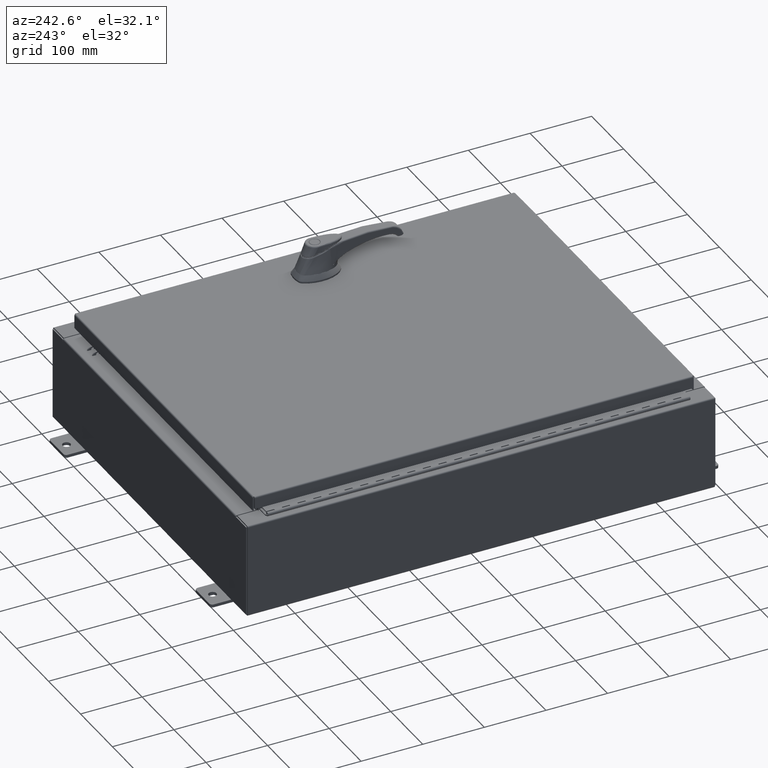
[diagram: clean part render]
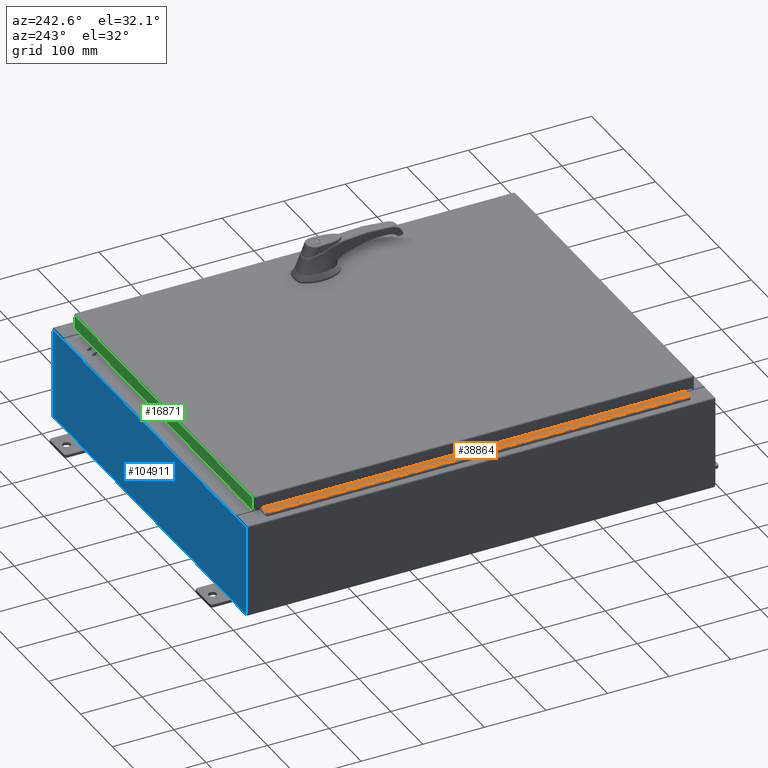
[diagram: same view with three faces highlighted in distinct colors, each labeled with its STEP entity id]
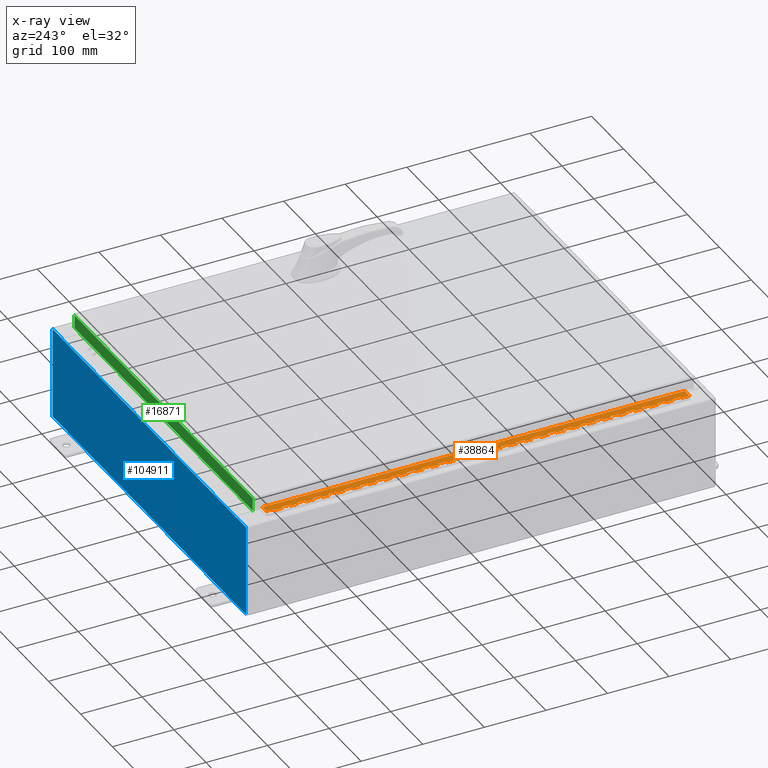
[diagram: x-ray of the same camera — body ghosted, the three highlighted faces saturated]
A machine part, auxiliary view with three faces highlighted in distinct colors.
The next image is the same camera in x-ray (body ghosted, the three faces saturated) — at least one of them is partly hidden behind the body in this view.
Their STEP definitions:

[orange] entity #38864 — the highlighted planar face has unit normal (-0, -0, 1).
#13 = VECTOR ( 'NONE', #10985, 39.37007874015748100 ) ;
#76 = DIRECTION ( 'NONE',  ( 3.389037039080723100E-015, 1.000000000000000000, -0.0000000000000000000 ) ) ;
#130 = DIRECTION ( 'NONE',  ( 0.0000000000000000000, 0.0000000000000000000, 1.000000000000000000 ) ) ;
#171 = CARTESIAN_POINT ( 'NONE',  ( -0.6869999999999978300, 0.6754999999999996600, -21.00000000000000000 ) ) ;
#343 = AXIS2_PLACEMENT_3D ( 'NONE', #84767, #93968, #39182 ) ;
#454 = ORIENTED_EDGE ( 'NONE', *, *, #86468, .F. ) ;
#469 = EDGE_CURVE ( 'NONE', #90402, #40831, #87715, .T. ) ;
#484 = VERTEX_POINT ( 'NONE', #25231 ) ;
#598 = CARTESIAN_POINT ( 'NONE',  ( -0.6869999999999982800, 0.5504999999999997700, -25.50000000000000400 ) ) ;
#778 = VERTEX_POINT ( 'NONE', #107673 ) ;
#816 = VECTOR ( 'NONE', #29030, 39.37007874015748100 ) ;
#1241 = VERTEX_POINT ( 'NONE', #5486 ) ;
#1539 = LINE ( 'NONE', #7505, #117460 ) ;
#1612 = LINE ( 'NONE', #116413, #47460 ) ;
#1690 = DIRECTION ( 'NONE',  ( 0.0000000000000000000, 0.0000000000000000000, 1.000000000000000000 ) ) ;
#2500 = EDGE_CURVE ( 'NONE', #55517, #10424, #88856, .T. ) ;
#2612 = DIRECTION ( 'NONE',  ( 0.0000000000000000000, -0.0000000000000000000, -1.000000000000000000 ) ) ;
#2765 = EDGE_CURVE ( 'NONE', #55517, #22323, #4372, .T. ) ;
#2823 = EDGE_CURVE ( 'NONE', #14271, #47510, #17159, .T. ) ;
#2902 = CARTESIAN_POINT ( 'NONE',  ( -0.6869999999999978300, 0.6754999999999996600, -27.00000000000000000 ) ) ;
#2935 = LINE ( 'NONE', #117263, #13 ) ;
#3002 = DIRECTION ( 'NONE',  ( 3.389037039080723100E-015, 1.000000000000000000, -0.0000000000000000000 ) ) ;
#3021 = CARTESIAN_POINT ( 'NONE',  ( -0.6869999999999982800, 0.5504999999999997700, -17.50000000000000000 ) ) ;
#3058 = VERTEX_POINT ( 'NONE', #4393 ) ;
#3226 = DIRECTION ( 'NONE',  ( 0.0000000000000000000, -0.0000000000000000000, -1.000000000000000000 ) ) ;
#3270 = VECTOR ( 'NONE', #66591, 39.37007874015748100 ) ;
#3296 = CARTESIAN_POINT ( 'NONE',  ( -0.6869999999999978300, 0.6754999999999996600, -2.999999999999999600 ) ) ;
#3429 = LINE ( 'NONE', #117751, #6308 ) ;
#3721 = VECTOR ( 'NONE', #7267, 39.37007874015748100 ) ;
#3754 = VERTEX_POINT ( 'NONE', #78424 ) ;
#3898 = VECTOR ( 'NONE', #38191, 39.37007874015748100 ) ;
#3915 = EDGE_CURVE ( 'NONE', #108784, #30503, #60109, .T. ) ;
#3977 = DIRECTION ( 'NONE',  ( 0.0000000000000000000, 0.0000000000000000000, 1.000000000000000000 ) ) ;
#4090 = ORIENTED_EDGE ( 'NONE', *, *, #90597, .T. ) ;
#4372 = LINE ( 'NONE', #26261, #22965 ) ;
#4393 = CARTESIAN_POINT ( 'NONE',  ( -0.6869999999999978300, 0.6754999999999996600, -4.000000000000000000 ) ) ;
#4608 = LINE ( 'NONE', #88050, #47538 ) ;
#4613 = CARTESIAN_POINT ( 'NONE',  ( -0.6869999999999982800, 0.5504999999999997700, -19.00000000000000000 ) ) ;
#4948 = EDGE_CURVE ( 'NONE', #69566, #22947, #8345, .T. ) ;
#5360 = VERTEX_POINT ( 'NONE', #91611 ) ;
#5467 = EDGE_CURVE ( 'NONE', #22947, #41766, #31208, .T. ) ;
#5486 = CARTESIAN_POINT ( 'NONE',  ( -0.6869999999999982800, 0.5504999999999997700, -10.50000000000000000 ) ) ;
#5724 = VECTOR ( 'NONE', #104943, 39.37007874015748100 ) ;
#6308 = VECTOR ( 'NONE', #53831, 39.37007874015748100 ) ;
#6373 = CARTESIAN_POINT ( 'NONE',  ( -0.6869999999999982800, 0.5504999999999997700, -4.500000000000000000 ) ) ;
#6503 = VECTOR ( 'NONE', #1690, 39.37007874015748100 ) ;
#6565 = EDGE_CURVE ( 'NONE', #67280, #38280, #25299, .T. ) ;
#6640 = ORIENTED_EDGE ( 'NONE', *, *, #85533, .F. ) ;
#6856 = FACE_OUTER_BOUND ( 'NONE', #55041, .T. ) ;
#7019 = EDGE_CURVE ( 'NONE', #116095, #110922, #51103, .T. ) ;
#7267 = DIRECTION ( 'NONE',  ( 0.0000000000000000000, 0.0000000000000000000, 1.000000000000000000 ) ) ;
#7505 = CARTESIAN_POINT ( 'NONE',  ( -0.6869999999999978300, 0.6754999999999996600, -27.00000000000000000 ) ) ;
#7653 = CARTESIAN_POINT ( 'NONE',  ( -0.6869999999999978300, 0.6754999999999996600, -27.00000000000000000 ) ) ;
#7980 = DIRECTION ( 'NONE',  ( 3.389037039080723100E-015, 1.000000000000000000, -0.0000000000000000000 ) ) ;
#7991 = VERTEX_POINT ( 'NONE', #26194 ) ;
#8060 = ORIENTED_EDGE ( 'NONE', *, *, #50328, .F. ) ;
#8078 = DIRECTION ( 'NONE',  ( 0.0000000000000000000, -0.0000000000000000000, -1.000000000000000000 ) ) ;
#8269 = ORIENTED_EDGE ( 'NONE', *, *, #77140, .F. ) ;
#8345 = LINE ( 'NONE', #94150, #57122 ) ;
#8399 = EDGE_CURVE ( 'NONE', #484, #3058, #19366, .T. ) ;
#8543 = LINE ( 'NONE', #83397, #101798 ) ;
#8574 = EDGE_CURVE ( 'NONE', #108617, #53066, #80890, .T. ) ;
#8817 = CARTESIAN_POINT ( 'NONE',  ( -0.6869999999999973900, 0.8004999999999995500, -6.000000000000000900 ) ) ;
#8901 = EDGE_CURVE ( 'NONE', #36688, #34665, #14987, .T. ) ;
#8918 = CARTESIAN_POINT ( 'NONE',  ( -0.6869999999999973900, 0.8004999999999995500, -14.49999999999999800 ) ) ;
#9740 = VERTEX_POINT ( 'NONE', #27729 ) ;
#9794 = VERTEX_POINT ( 'NONE', #69714 ) ;
#9839 = LINE ( 'NONE', #86927, #34192 ) ;
#9985 = ORIENTED_EDGE ( 'NONE', *, *, #18179, .F. ) ;
#10086 = DIRECTION ( 'NONE',  ( 0.0000000000000000000, 0.0000000000000000000, 1.000000000000000000 ) ) ;
#10149 = EDGE_CURVE ( 'NONE', #118443, #86940, #26486, .T. ) ;
#10329 = CARTESIAN_POINT ( 'NONE',  ( -0.6869999999999982800, 0.5504999999999997700, -7.499999999999999100 ) ) ;
#10345 = DIRECTION ( 'NONE',  ( 3.389037039080723100E-015, 1.000000000000000000, -0.0000000000000000000 ) ) ;
#10424 = VERTEX_POINT ( 'NONE', #33506 ) ;
#10608 = CARTESIAN_POINT ( 'NONE',  ( -0.6869999999999973900, 0.8004999999999995500, -22.50000000000000000 ) ) ;
#10734 = LINE ( 'NONE', #33080, #102326 ) ;
#10872 = DIRECTION ( 'NONE',  ( 3.389037039080723100E-015, 1.000000000000000000, -0.0000000000000000000 ) ) ;
#10985 = DIRECTION ( 'NONE',  ( 0.0000000000000000000, -0.0000000000000000000, -1.000000000000000000 ) ) ;
#11039 = CARTESIAN_POINT ( 'NONE',  ( -0.6869999999999973900, 0.8004999999999995500, -25.50000000000000400 ) ) ;
#11057 = CARTESIAN_POINT ( 'NONE',  ( -0.6869999999999973900, 0.8004999999999995500, -12.99999999999999800 ) ) ;
#11160 = ORIENTED_EDGE ( 'NONE', *, *, #61044, .T. ) ;
#11361 = VECTOR ( 'NONE', #58950, 39.37007874015748100 ) ;
#11402 = CARTESIAN_POINT ( 'NONE',  ( -0.6869999999999982800, 0.5504999999999997700, -0.5000000000000000000 ) ) ;
#11411 = EDGE_CURVE ( 'NONE', #116171, #37213, #49302, .T. ) ;
#11416 = EDGE_CURVE ( 'NONE', #34159, #778, #46393, .T. ) ;
#11464 = VECTOR ( 'NONE', #57694, 39.37007874015748100 ) ;
#11756 = ORIENTED_EDGE ( 'NONE', *, *, #67832, .F. ) ;
#11766 = CARTESIAN_POINT ( 'NONE',  ( -0.6869999999999978300, 0.6754999999999996600, -13.50000000000000000 ) ) ;
#11851 = CARTESIAN_POINT ( 'NONE',  ( -0.6869999999999973900, 0.8004999999999995500, -24.99999999999999600 ) ) ;
#11933 = EDGE_CURVE ( 'NONE', #81757, #1241, #97721, .T. ) ;
#12071 = LINE ( 'NONE', #25451, #109369 ) ;
#12408 = CARTESIAN_POINT ( 'NONE',  ( -0.6869999999999982800, 0.5504999999999997700, -26.50000000000000400 ) ) ;
#12575 = VECTOR ( 'NONE', #60781, 39.37007874015748100 ) ;
#12776 = ORIENTED_EDGE ( 'NONE', *, *, #28919, .F. ) ;
#12826 = VERTEX_POINT ( 'NONE', #171 ) ;
#13274 = DIRECTION ( 'NONE',  ( 0.0000000000000000000, 0.0000000000000000000, 1.000000000000000000 ) ) ;
#13971 = EDGE_CURVE ( 'NONE', #116860, #68855, #101777, .T. ) ;
#14271 = VERTEX_POINT ( 'NONE', #99706 ) ;
#14419 = CARTESIAN_POINT ( 'NONE',  ( -0.6869999999999982800, 0.5504999999999997700, -22.00000000000000000 ) ) ;
#14474 = LINE ( 'NONE', #34099, #103236 ) ;
#14584 = EDGE_CURVE ( 'NONE', #52878, #51158, #2935, .T. ) ;
#14620 = DIRECTION ( 'NONE',  ( 0.0000000000000000000, -0.0000000000000000000, -1.000000000000000000 ) ) ;
#14686 = CARTESIAN_POINT ( 'NONE',  ( -0.6869999999999978300, 0.6754999999999996600, -27.00000000000000000 ) ) ;
#14987 = LINE ( 'NONE', #49499, #109471 ) ;
#15061 = CARTESIAN_POINT ( 'NONE',  ( -0.6869999999999982800, 0.5504999999999997700, -15.50000000000000000 ) ) ;
#15353 = LINE ( 'NONE', #21801, #85563 ) ;
#15375 = EDGE_CURVE ( 'NONE', #27843, #62633, #8543, .T. ) ;
#15849 = VECTOR ( 'NONE', #76690, 39.37007874015748100 ) ;
#15862 = DIRECTION ( 'NONE',  ( 0.0000000000000000000, -0.0000000000000000000, -1.000000000000000000 ) ) ;
#15923 = ORIENTED_EDGE ( 'NONE', *, *, #30457, .F. ) ;
#16009 = DIRECTION ( 'NONE',  ( 0.0000000000000000000, 0.0000000000000000000, 1.000000000000000000 ) ) ;
#16261 = CARTESIAN_POINT ( 'NONE',  ( -0.6869999999999978300, 0.6754999999999996600, -5.500000000000000000 ) ) ;
#16410 = EDGE_CURVE ( 'NONE', #60188, #36936, #74485, .T. ) ;
#16503 = EDGE_CURVE ( 'NONE', #118006, #28363, #35816, .T. ) ;
#16546 = VECTOR ( 'NONE', #57124, 39.37007874015748100 ) ;
#16685 = VECTOR ( 'NONE', #46554, 39.37007874015748100 ) ;
#16686 = VECTOR ( 'NONE', #54353, 39.37007874015748100 ) ;
#16772 = CARTESIAN_POINT ( 'NONE',  ( -0.6869999999999973900, 0.8004999999999995500, -24.50000000000000000 ) ) ;
#16958 = CARTESIAN_POINT ( 'NONE',  ( -0.6869999999999973900, 0.8004999999999995500, -26.50000000000000400 ) ) ;
#16975 = CARTESIAN_POINT ( 'NONE',  ( -0.6869999999999973900, 0.8004999999999995500, -2.000000000000000000 ) ) ;
#17015 = VECTOR ( 'NONE', #89641, 39.37007874015748100 ) ;
#17130 = VECTOR ( 'NONE', #103929, 39.37007874015748100 ) ;
#17159 = LINE ( 'NONE', #11851, #68748 ) ;
#17191 = VERTEX_POINT ( 'NONE', #118518 ) ;
#17209 = DIRECTION ( 'NONE',  ( 0.0000000000000000000, 0.0000000000000000000, 1.000000000000000000 ) ) ;
#17342 = CARTESIAN_POINT ( 'NONE',  ( -0.6869999999999982800, 0.5504999999999997700, -1.499999999999999800 ) ) ;
#17453 = VECTOR ( 'NONE', #55324, 39.37007874015748100 ) ;
#17978 = DIRECTION ( 'NONE',  ( 3.389037039080723100E-015, 1.000000000000000000, -0.0000000000000000000 ) ) ;
#18174 = VERTEX_POINT ( 'NONE', #79090 ) ;
#18179 = EDGE_CURVE ( 'NONE', #102135, #20718, #89992, .T. ) ;
#18577 = DIRECTION ( 'NONE',  ( 0.0000000000000000000, 0.0000000000000000000, 1.000000000000000000 ) ) ;
#18618 = EDGE_CURVE ( 'NONE', #90429, #116095, #104193, .T. ) ;
#18778 = VERTEX_POINT ( 'NONE', #73913 ) ;
#19025 = ORIENTED_EDGE ( 'NONE', *, *, #13971, .F. ) ;
#19103 = VERTEX_POINT ( 'NONE', #17342 ) ;
#19213 = CARTESIAN_POINT ( 'NONE',  ( -0.6869999999999973900, 0.8004999999999995500, -4.500000000000000000 ) ) ;
#19218 = VERTEX_POINT ( 'NONE', #43263 ) ;
#19236 = LINE ( 'NONE', #14686, #43585 ) ;
#19366 = LINE ( 'NONE', #48852, #89547 ) ;
#19714 = CARTESIAN_POINT ( 'NONE',  ( -0.6870000000000022800, -0.6245000000000003900, 0.0000000000000000000 ) ) ;
#19920 = LINE ( 'NONE', #44018, #17015 ) ;
#20027 = CARTESIAN_POINT ( 'NONE',  ( -0.6869999999999973900, 0.8004999999999995500, -17.50000000000000000 ) ) ;
#20157 = EDGE_CURVE ( 'NONE', #5360, #19103, #39623, .T. ) ;
#20230 = CARTESIAN_POINT ( 'NONE',  ( -0.6869999999999978300, 0.6754999999999996600, -21.50000000000000400 ) ) ;
#20395 = CARTESIAN_POINT ( 'NONE',  ( -0.6869999999999982800, 0.5504999999999997700, -11.00000000000000000 ) ) ;
#20401 = DIRECTION ( 'NONE',  ( -3.389037039080723100E-015, -1.000000000000000000, 0.0000000000000000000 ) ) ;
#20575 = CARTESIAN_POINT ( 'NONE',  ( -0.6870000000000022800, -0.6245000000000003900, -27.00000000000000000 ) ) ;
#20718 = VERTEX_POINT ( 'NONE', #98260 ) ;
#20731 = PLANE ( 'NONE',  #343 ) ;
#20743 = ORIENTED_EDGE ( 'NONE', *, *, #8901, .F. ) ;
#20871 = VERTEX_POINT ( 'NONE', #49086 ) ;
#21200 = VECTOR ( 'NONE', #109171, 39.37007874015748100 ) ;
#21339 = CARTESIAN_POINT ( 'NONE',  ( -0.6869999999999978300, 0.6754999999999996600, -11.00000000000000000 ) ) ;
#21354 = EDGE_CURVE ( 'NONE', #47920, #93531, #95277, .T. ) ;
#21436 = VERTEX_POINT ( 'NONE', #36983 ) ;
#21800 = ORIENTED_EDGE ( 'NONE', *, *, #111608, .F. ) ;
#21801 = CARTESIAN_POINT ( 'NONE',  ( -0.6869999999999973900, 0.8004999999999995500, -1.000000000000000000 ) ) ;
#22008 = ORIENTED_EDGE ( 'NONE', *, *, #114912, .F. ) ;
#22118 = ORIENTED_EDGE ( 'NONE', *, *, #6565, .F. ) ;
#22260 = EDGE_CURVE ( 'NONE', #90429, #100064, #19236, .T. ) ;
#22305 = CARTESIAN_POINT ( 'NONE',  ( -0.6869999999999978300, 0.6754999999999996600, -27.00000000000000000 ) ) ;
#22323 = VERTEX_POINT ( 'NONE', #70314 ) ;
#22331 = LINE ( 'NONE', #11057, #816 ) ;
#22501 = CARTESIAN_POINT ( 'NONE',  ( -0.6869999999999978300, 0.6754999999999996600, -19.00000000000000000 ) ) ;
#22673 = VERTEX_POINT ( 'NONE', #57960 ) ;
#22802 = DIRECTION ( 'NONE',  ( 0.0000000000000000000, -0.0000000000000000000, -1.000000000000000000 ) ) ;
#22907 = DIRECTION ( 'NONE',  ( -3.389037039080723100E-015, -1.000000000000000000, 0.0000000000000000000 ) ) ;
#22946 = LINE ( 'NONE', #76332, #114478 ) ;
#22947 = VERTEX_POINT ( 'NONE', #43809 ) ;
#22965 = VECTOR ( 'NONE', #20401, 39.37007874015748100 ) ;
#23056 = EDGE_CURVE ( 'NONE', #26053, #32783, #3429, .T. ) ;
#23243 = CARTESIAN_POINT ( 'NONE',  ( -0.6869999999999982800, 0.5504999999999997700, -2.999999999999999600 ) ) ;
#23374 = ORIENTED_EDGE ( 'NONE', *, *, #84374, .F. ) ;
#23709 = VECTOR ( 'NONE', #39212, 39.37007874015748100 ) ;
#23858 = DIRECTION ( 'NONE',  ( 3.389037039080723100E-015, 1.000000000000000000, -0.0000000000000000000 ) ) ;
#23871 = VECTOR ( 'NONE', #28971, 39.37007874015748100 ) ;
#23896 = CARTESIAN_POINT ( 'NONE',  ( -0.6869999999999973900, 0.8004999999999995500, -19.50000000000000000 ) ) ;
#23901 = VERTEX_POINT ( 'NONE', #16261 ) ;
#23952 = ORIENTED_EDGE ( 'NONE', *, *, #15375, .T. ) ;
#24068 = LINE ( 'NONE', #54453, #21200 ) ;
#24092 = CARTESIAN_POINT ( 'NONE',  ( -0.6869999999999982800, 0.5504999999999997700, -16.50000000000000000 ) ) ;
#24143 = LINE ( 'NONE', #80098, #91468 ) ;
#24202 = EDGE_CURVE ( 'NONE', #80411, #10424, #22331, .T. ) ;
#24223 = VERTEX_POINT ( 'NONE', #93488 ) ;
#24541 = VERTEX_POINT ( 'NONE', #88623 ) ;
#24739 = EDGE_CURVE ( 'NONE', #81757, #82496, #30809, .T. ) ;
#24826 = ORIENTED_EDGE ( 'NONE', *, *, #70415, .F. ) ;
#25023 = ORIENTED_EDGE ( 'NONE', *, *, #44052, .T. ) ;
#25074 = CARTESIAN_POINT ( 'NONE',  ( -0.6869999999999982800, 0.5504999999999997700, -24.50000000000000000 ) ) ;
#25231 = CARTESIAN_POINT ( 'NONE',  ( -0.6869999999999982800, 0.5504999999999997700, -4.000000000000000000 ) ) ;
#25299 = LINE ( 'NONE', #72116, #114060 ) ;
#25451 = CARTESIAN_POINT ( 'NONE',  ( -0.6869999999999973900, 0.8004999999999995500, -9.000000000000000000 ) ) ;
#25602 = DIRECTION ( 'NONE',  ( -3.389037039080723100E-015, -1.000000000000000000, 0.0000000000000000000 ) ) ;
#25608 = VECTOR ( 'NONE', #10345, 39.37007874015748100 ) ;
#25658 = VERTEX_POINT ( 'NONE', #598 ) ;
#25766 = VECTOR ( 'NONE', #8078, 39.37007874015748100 ) ;
#25872 = LINE ( 'NONE', #25074, #96075 ) ;
#25897 = LINE ( 'NONE', #118604, #53164 ) ;
#25992 = DIRECTION ( 'NONE',  ( -3.389037039080723100E-015, -1.000000000000000000, 0.0000000000000000000 ) ) ;
#26053 = VERTEX_POINT ( 'NONE', #4613 ) ;
#26104 = CARTESIAN_POINT ( 'NONE',  ( -0.6869999999999982800, 0.5504999999999997700, -1.499999999999999800 ) ) ;
#26194 = CARTESIAN_POINT ( 'NONE',  ( -0.6869999999999982800, 0.5504999999999997700, -7.000000000000000000 ) ) ;
#26234 = CARTESIAN_POINT ( 'NONE',  ( -0.6869999999999982800, 0.5504999999999997700, -23.00000000000000000 ) ) ;
#26261 = CARTESIAN_POINT ( 'NONE',  ( -0.6869999999999973900, 0.8004999999999995500, -13.50000000000000000 ) ) ;
#26284 = CARTESIAN_POINT ( 'NONE',  ( -0.6869999999999982800, 0.5504999999999997700, -17.50000000000000000 ) ) ;
#26486 = LINE ( 'NONE', #20027, #48015 ) ;
#26847 = VECTOR ( 'NONE', #110619, 39.37007874015748100 ) ;
#26976 = DIRECTION ( 'NONE',  ( 3.389037039080723100E-015, 1.000000000000000000, -0.0000000000000000000 ) ) ;
#27221 = DIRECTION ( 'NONE',  ( 0.0000000000000000000, -0.0000000000000000000, -1.000000000000000000 ) ) ;
#27460 = CARTESIAN_POINT ( 'NONE',  ( -0.6869999999999978300, 0.6754999999999996600, -27.00000000000000000 ) ) ;
#27634 = CARTESIAN_POINT ( 'NONE',  ( -0.6869999999999978300, 0.6754999999999996600, -27.00000000000000000 ) ) ;
#27729 = CARTESIAN_POINT ( 'NONE',  ( -0.6869999999999982800, 0.5504999999999997700, -0.5000000000000000000 ) ) ;
#27843 = VERTEX_POINT ( 'NONE', #106285 ) ;
#27908 = VECTOR ( 'NONE', #100675, 39.37007874015748100 ) ;
#27917 = ORIENTED_EDGE ( 'NONE', *, *, #37187, .F. ) ;
#27990 = DIRECTION ( 'NONE',  ( 3.389037039080723100E-015, 1.000000000000000000, -0.0000000000000000000 ) ) ;
#28064 = ORIENTED_EDGE ( 'NONE', *, *, #52074, .F. ) ;
#28115 = CARTESIAN_POINT ( 'NONE',  ( -0.6869999999999982800, 0.5504999999999997700, -5.500000000000000000 ) ) ;
#28245 = EDGE_CURVE ( 'NONE', #30503, #102444, #57662, .T. ) ;
#28363 = VERTEX_POINT ( 'NONE', #37337 ) ;
#28721 = CARTESIAN_POINT ( 'NONE',  ( -0.6869999999999973900, 0.8004999999999995500, -10.00000000000000000 ) ) ;
#28919 = EDGE_CURVE ( 'NONE', #94154, #67068, #81798, .T. ) ;
#28971 = DIRECTION ( 'NONE',  ( 0.0000000000000000000, -0.0000000000000000000, -1.000000000000000000 ) ) ;
#29030 = DIRECTION ( 'NONE',  ( 3.389037039080723100E-015, 1.000000000000000000, -0.0000000000000000000 ) ) ;
#29083 = VECTOR ( 'NONE', #71243, 39.37007874015748100 ) ;
#29183 = ORIENTED_EDGE ( 'NONE', *, *, #18618, .F. ) ;
#29298 = VECTOR ( 'NONE', #116558, 39.37007874015748100 ) ;
#29301 = EDGE_CURVE ( 'NONE', #20871, #24223, #40294, .T. ) ;
#29628 = LINE ( 'NONE', #53239, #72586 ) ;
#29686 = CARTESIAN_POINT ( 'NONE',  ( -0.6869999999999978300, 0.6754999999999996600, -8.000000000000000000 ) ) ;
#30059 = ORIENTED_EDGE ( 'NONE', *, *, #75154, .F. ) ;
#30185 = EDGE_CURVE ( 'NONE', #117831, #64828, #83067, .T. ) ;
#30457 = EDGE_CURVE ( 'NONE', #116171, #99485, #22946, .T. ) ;
#30495 = EDGE_CURVE ( 'NONE', #19218, #73907, #90207, .T. ) ;
#30503 = VERTEX_POINT ( 'NONE', #40374 ) ;
#30549 = ORIENTED_EDGE ( 'NONE', *, *, #96558, .T. ) ;
#30720 = DIRECTION ( 'NONE',  ( -3.389037039080723100E-015, -1.000000000000000000, 0.0000000000000000000 ) ) ;
#30809 = LINE ( 'NONE', #92962, #6503 ) ;
#30881 = CARTESIAN_POINT ( 'NONE',  ( -0.6869999999999982800, 0.5504999999999997700, -22.50000000000000000 ) ) ;
#31137 = VECTOR ( 'NONE', #14620, 39.37007874015748100 ) ;
#31198 = VECTOR ( 'NONE', #107918, 39.37007874015748100 ) ;
#31208 = LINE ( 'NONE', #53068, #79862 ) ;
#31225 = EDGE_CURVE ( 'NONE', #107612, #7991, #19920, .T. ) ;
#31426 = VECTOR ( 'NONE', #56284, 39.37007874015748100 ) ;
#31648 = VECTOR ( 'NONE', #31778, 39.37007874015748100 ) ;
#31778 = DIRECTION ( 'NONE',  ( -3.389037039080723100E-015, -1.000000000000000000, 0.0000000000000000000 ) ) ;
#32013 = ORIENTED_EDGE ( 'NONE', *, *, #76402, .F. ) ;
#32183 = VECTOR ( 'NONE', #22802, 39.37007874015748100 ) ;
#32507 = LINE ( 'NONE', #64170, #78272 ) ;
#32538 = VERTEX_POINT ( 'NONE', #28115 ) ;
#32559 = VERTEX_POINT ( 'NONE', #101758 ) ;
#32783 = VERTEX_POINT ( 'NONE', #22501 ) ;
#32800 = LINE ( 'NONE', #101465, #54278 ) ;
#32829 = ORIENTED_EDGE ( 'NONE', *, *, #7019, .F. ) ;
#32924 = VECTOR ( 'NONE', #17209, 39.37007874015748100 ) ;
#32982 = VERTEX_POINT ( 'NONE', #66874 ) ;
#33080 = CARTESIAN_POINT ( 'NONE',  ( -0.6869999999999973900, 0.8004999999999995500, -5.000000000000000000 ) ) ;
#33131 = DIRECTION ( 'NONE',  ( 0.0000000000000000000, 0.0000000000000000000, 1.000000000000000000 ) ) ;
#33176 = CARTESIAN_POINT ( 'NONE',  ( -0.6869999999999982800, 0.5504999999999997700, -6.499999999999999100 ) ) ;
#33254 = ORIENTED_EDGE ( 'NONE', *, *, #78851, .T. ) ;
#33506 = CARTESIAN_POINT ( 'NONE',  ( -0.6869999999999978300, 0.6754999999999996600, -12.99999999999999800 ) ) ;
#33985 = LINE ( 'NONE', #57904, #36870 ) ;
#34099 = CARTESIAN_POINT ( 'NONE',  ( -0.6869999999999978300, 0.6754999999999996600, -27.00000000000000000 ) ) ;
#34159 = VERTEX_POINT ( 'NONE', #41300 ) ;
#34192 = VECTOR ( 'NONE', #22907, 39.37007874015748100 ) ;
#34323 = VERTEX_POINT ( 'NONE', #98026 ) ;
#34532 = EDGE_CURVE ( 'NONE', #91463, #32559, #38357, .T. ) ;
#34626 = VECTOR ( 'NONE', #51947, 39.37007874015748100 ) ;
#34665 = VERTEX_POINT ( 'NONE', #26234 ) ;
#34849 = CARTESIAN_POINT ( 'NONE',  ( -0.6869999999999978300, 0.6754999999999996600, -27.00000000000000000 ) ) ;
#35034 = LINE ( 'NONE', #96024, #32183 ) ;
#35146 = EDGE_CURVE ( 'NONE', #106253, #73907, #98343, .T. ) ;
#35202 = CARTESIAN_POINT ( 'NONE',  ( -0.6869999999999973900, 0.8004999999999995500, -20.50000000000000400 ) ) ;
#35595 = CARTESIAN_POINT ( 'NONE',  ( -0.6869999999999973900, 0.8004999999999995500, -17.00000000000000000 ) ) ;
#35816 = LINE ( 'NONE', #84425, #11464 ) ;
#35958 = CARTESIAN_POINT ( 'NONE',  ( -0.6869999999999973900, 0.8004999999999995500, -2.500000000000000000 ) ) ;
#36024 = CARTESIAN_POINT ( 'NONE',  ( -0.6869999999999998300, 0.07549999999999991400, 0.0000000000000000000 ) ) ;
#36561 = EDGE_CURVE ( 'NONE', #73906, #12826, #87335, .T. ) ;
#36573 = VERTEX_POINT ( 'NONE', #29686 ) ;
#36591 = ORIENTED_EDGE ( 'NONE', *, *, #14584, .F. ) ;
#36688 = VERTEX_POINT ( 'NONE', #30881 ) ;
#36723 = DIRECTION ( 'NONE',  ( 0.0000000000000000000, 0.0000000000000000000, 1.000000000000000000 ) ) ;
#36747 = VECTOR ( 'NONE', #60524, 39.37007874015748100 ) ;
#36859 = CARTESIAN_POINT ( 'NONE',  ( -0.6869999999999973900, 0.8004999999999995500, -23.50000000000000000 ) ) ;
#36870 = VECTOR ( 'NONE', #2612, 39.37007874015748100 ) ;
#36936 = VERTEX_POINT ( 'NONE', #80760 ) ;
#36983 = CARTESIAN_POINT ( 'NONE',  ( -0.6869999999999978300, 0.6754999999999996600, -6.000000000000000900 ) ) ;
#37187 = EDGE_CURVE ( 'NONE', #95690, #82496, #98640, .T. ) ;
#37213 = VERTEX_POINT ( 'NONE', #74763 ) ;
#37324 = ORIENTED_EDGE ( 'NONE', *, *, #41044, .F. ) ;
#37337 = CARTESIAN_POINT ( 'NONE',  ( -0.6869999999999982800, 0.5504999999999997700, -8.500000000000000000 ) ) ;
#37771 = EDGE_CURVE ( 'NONE', #22323, #90402, #24143, .T. ) ;
#38157 = LINE ( 'NONE', #82089, #81024 ) ;
#38191 = DIRECTION ( 'NONE',  ( 3.389037039080723100E-015, 1.000000000000000000, -0.0000000000000000000 ) ) ;
#38200 = ORIENTED_EDGE ( 'NONE', *, *, #10149, .F. ) ;
#38280 = VERTEX_POINT ( 'NONE', #69227 ) ;
#38357 = LINE ( 'NONE', #39199, #59874 ) ;
#38864 = ADVANCED_FACE ( 'NONE', ( #6856 ), #20731, .T. ) ;
#39061 = VERTEX_POINT ( 'NONE', #49976 ) ;
#39182 = DIRECTION ( 'NONE',  ( 3.369016658928398200E-015, 1.000000000000000000, 0.0000000000000000000 ) ) ;
#39199 = CARTESIAN_POINT ( 'NONE',  ( -0.6869999999999978300, 0.6754999999999996600, -27.00000000000000000 ) ) ;
#39212 = DIRECTION ( 'NONE',  ( 0.0000000000000000000, -0.0000000000000000000, -1.000000000000000000 ) ) ;
#39623 = LINE ( 'NONE', #106057, #36747 ) ;
#39732 = ORIENTED_EDGE ( 'NONE', *, *, #36561, .F. ) ;
#40044 = CARTESIAN_POINT ( 'NONE',  ( -0.6869999999999978300, 0.6754999999999996600, -2.000000000000000000 ) ) ;
#40143 = CARTESIAN_POINT ( 'NONE',  ( -0.6869999999999982800, 0.5504999999999997700, -15.50000000000000000 ) ) ;
#40294 = LINE ( 'NONE', #22305, #15849 ) ;
#40311 = ORIENTED_EDGE ( 'NONE', *, *, #11411, .T. ) ;
#40316 = VERTEX_POINT ( 'NONE', #42418 ) ;
#40374 = CARTESIAN_POINT ( 'NONE',  ( -0.6869999999999982800, 0.5504999999999997700, -11.50000000000000000 ) ) ;
#40593 = CARTESIAN_POINT ( 'NONE',  ( -0.6869999999999982800, 0.5504999999999997700, -11.50000000000000000 ) ) ;
#40831 = VERTEX_POINT ( 'NONE', #43438 ) ;
#40967 = CARTESIAN_POINT ( 'NONE',  ( -0.6869999999999973900, 0.8004999999999995500, -23.00000000000000000 ) ) ;
#41044 = EDGE_CURVE ( 'NONE', #95266, #25658, #89614, .T. ) ;
#41169 = ORIENTED_EDGE ( 'NONE', *, *, #2500, .T. ) ;
#41173 = CARTESIAN_POINT ( 'NONE',  ( -0.6869999999999978300, 0.6754999999999996600, -6.499999999999999100 ) ) ;
#41180 = EDGE_CURVE ( 'NONE', #86940, #106253, #108188, .T. ) ;
#41300 = CARTESIAN_POINT ( 'NONE',  ( -0.6869999999999978300, 0.6754999999999996600, -14.49999999999999800 ) ) ;
#41664 = CARTESIAN_POINT ( 'NONE',  ( -0.6869999999999978300, 0.6754999999999996600, -26.00000000000000000 ) ) ;
#41718 = CARTESIAN_POINT ( 'NONE',  ( -0.6869999999999978300, 0.6754999999999996600, -26.50000000000000400 ) ) ;
#41766 = VERTEX_POINT ( 'NONE', #14419 ) ;
#42368 = VECTOR ( 'NONE', #115503, 39.37007874015748100 ) ;
#42418 = CARTESIAN_POINT ( 'NONE',  ( -0.6869999999999982800, 0.5504999999999997700, -27.00000000000000000 ) ) ;
#42546 = LINE ( 'NONE', #76194, #85499 ) ;
#42579 = CARTESIAN_POINT ( 'NONE',  ( -0.6869999999999978300, 0.6754999999999996600, -25.50000000000000400 ) ) ;
#42830 = ORIENTED_EDGE ( 'NONE', *, *, #90133, .F. ) ;
#42845 = CARTESIAN_POINT ( 'NONE',  ( -0.6869999999999982800, 0.5504999999999997700, -20.00000000000000000 ) ) ;
#42890 = LINE ( 'NONE', #2902, #88724 ) ;
#43154 = LINE ( 'NONE', #97484, #88968 ) ;
#43156 = VECTOR ( 'NONE', #53593, 39.37007874015748100 ) ;
#43263 = CARTESIAN_POINT ( 'NONE',  ( -0.6869999999999978300, 0.6754999999999996600, -18.50000000000000000 ) ) ;
#43289 = ORIENTED_EDGE ( 'NONE', *, *, #105312, .T. ) ;
#43420 = CARTESIAN_POINT ( 'NONE',  ( -0.6869999999999978300, 0.6754999999999996600, -27.00000000000000000 ) ) ;
#43438 = CARTESIAN_POINT ( 'NONE',  ( -0.6869999999999978300, 0.6754999999999996600, -14.00000000000000000 ) ) ;
#43508 = VECTOR ( 'NONE', #61952, 39.37007874015748100 ) ;
#43585 = VECTOR ( 'NONE', #78724, 39.37007874015748100 ) ;
#43809 = CARTESIAN_POINT ( 'NONE',  ( -0.6869999999999982800, 0.5504999999999997700, -21.50000000000000400 ) ) ;
#43896 = CARTESIAN_POINT ( 'NONE',  ( -0.6869999999999978300, 0.6754999999999996600, -27.00000000000000000 ) ) ;
#43924 = CARTESIAN_POINT ( 'NONE',  ( -0.6869999999999978300, 0.6754999999999996600, -22.00000000000000000 ) ) ;
#43930 = LINE ( 'NONE', #19714, #16685 ) ;
#44018 = CARTESIAN_POINT ( 'NONE',  ( -0.6869999999999982800, 0.5504999999999997700, -6.499999999999999100 ) ) ;
#44052 = EDGE_CURVE ( 'NONE', #108784, #64828, #77768, .T. ) ;
#44207 = ORIENTED_EDGE ( 'NONE', *, *, #47852, .T. ) ;
#44655 = CARTESIAN_POINT ( 'NONE',  ( -0.6869999999999973900, 0.8004999999999995500, -18.50000000000000000 ) ) ;
#45095 = ORIENTED_EDGE ( 'NONE', *, *, #64150, .F. ) ;
#45353 = CARTESIAN_POINT ( 'NONE',  ( -0.6869999999999978300, 0.6754999999999996600, -7.000000000000000000 ) ) ;
#45536 = VERTEX_POINT ( 'NONE', #59804 ) ;
#45646 = CARTESIAN_POINT ( 'NONE',  ( -0.6869999999999978300, 0.6754999999999996600, -20.50000000000000400 ) ) ;
#45695 = DIRECTION ( 'NONE',  ( 3.389037039080723100E-015, 1.000000000000000000, -0.0000000000000000000 ) ) ;
#45710 = VECTOR ( 'NONE', #93822, 39.37007874015748100 ) ;
#45889 = CARTESIAN_POINT ( 'NONE',  ( -0.6869999999999982800, 0.5504999999999997700, -3.500000000000000000 ) ) ;
#45911 = CARTESIAN_POINT ( 'NONE',  ( -0.6869999999999973900, 0.8004999999999995500, -7.499999999999999100 ) ) ;
#46070 = VECTOR ( 'NONE', #53887, 39.37007874015748100 ) ;
#46137 = CARTESIAN_POINT ( 'NONE',  ( -0.6869999999999982800, 0.5504999999999997700, -2.500000000000000000 ) ) ;
#46140 = LINE ( 'NONE', #79881, #70459 ) ;
#46282 = DIRECTION ( 'NONE',  ( 0.0000000000000000000, 0.0000000000000000000, 1.000000000000000000 ) ) ;
#46351 = DIRECTION ( 'NONE',  ( 0.0000000000000000000, 0.0000000000000000000, 1.000000000000000000 ) ) ;
#46393 = LINE ( 'NONE', #8918, #43508 ) ;
#46554 = DIRECTION ( 'NONE',  ( 3.369016658928398200E-015, 1.000000000000000000, 0.0000000000000000000 ) ) ;
#46598 = LINE ( 'NONE', #27460, #68038 ) ;
#46603 = VECTOR ( 'NONE', #90200, 39.37007874015748100 ) ;
#46811 = EDGE_CURVE ( 'NONE', #90121, #26053, #46140, .T. ) ;
#46931 = LINE ( 'NONE', #51396, #68388 ) ;
#47297 = DIRECTION ( 'NONE',  ( -3.389037039080723100E-015, -1.000000000000000000, 0.0000000000000000000 ) ) ;
#47308 = VERTEX_POINT ( 'NONE', #69611 ) ;
#47329 = EDGE_CURVE ( 'NONE', #18778, #32982, #4608, .T. ) ;
#47395 = ORIENTED_EDGE ( 'NONE', *, *, #21354, .T. ) ;
#47460 = VECTOR ( 'NONE', #107277, 39.37007874015748100 ) ;
#47510 = VERTEX_POINT ( 'NONE', #75526 ) ;
#47538 = VECTOR ( 'NONE', #58945, 39.37007874015748100 ) ;
#47740 = DIRECTION ( 'NONE',  ( 3.389037039080723100E-015, 1.000000000000000000, -0.0000000000000000000 ) ) ;
#47852 = EDGE_CURVE ( 'NONE', #18778, #67200, #43154, .T. ) ;
#47920 = VERTEX_POINT ( 'NONE', #70648 ) ;
#48009 = CARTESIAN_POINT ( 'NONE',  ( -0.6869999999999978300, 0.6754999999999996600, -27.00000000000000000 ) ) ;
#48015 = VECTOR ( 'NONE', #80469, 39.37007874015748100 ) ;
#48016 = ORIENTED_EDGE ( 'NONE', *, *, #74401, .F. ) ;
#48100 = EDGE_CURVE ( 'NONE', #23901, #32538, #25897, .T. ) ;
#48265 = CARTESIAN_POINT ( 'NONE',  ( -0.6869999999999978300, 0.6754999999999996600, -15.50000000000000000 ) ) ;
#48316 = CARTESIAN_POINT ( 'NONE',  ( -0.6869999999999982800, 0.5504999999999997700, -10.00000000000000000 ) ) ;
#48401 = EDGE_CURVE ( 'NONE', #9740, #3754, #70034, .T. ) ;
#48563 = LINE ( 'NONE', #111246, #94338 ) ;
#48766 = CARTESIAN_POINT ( 'NONE',  ( -0.6869999999999978300, 0.6754999999999996600, -0.5000000000000000000 ) ) ;
#48803 = ORIENTED_EDGE ( 'NONE', *, *, #107580, .F. ) ;
#48852 = CARTESIAN_POINT ( 'NONE',  ( -0.6869999999999973900, 0.8004999999999995500, -4.000000000000000000 ) ) ;
#49086 = CARTESIAN_POINT ( 'NONE',  ( -0.6869999999999978300, 0.6754999999999996600, -24.50000000000000000 ) ) ;
#49302 = LINE ( 'NONE', #43896, #116443 ) ;
#49489 = ORIENTED_EDGE ( 'NONE', *, *, #41180, .F. ) ;
#49499 = CARTESIAN_POINT ( 'NONE',  ( -0.6869999999999982800, 0.5504999999999997700, -22.50000000000000000 ) ) ;
#49577 = ORIENTED_EDGE ( 'NONE', *, *, #62124, .F. ) ;
#49806 = ORIENTED_EDGE ( 'NONE', *, *, #63473, .F. ) ;
#49916 = ORIENTED_EDGE ( 'NONE', *, *, #2823, .F. ) ;
#49976 = CARTESIAN_POINT ( 'NONE',  ( -0.6869999999999982800, 0.5504999999999997700, -24.50000000000000000 ) ) ;
#50328 = EDGE_CURVE ( 'NONE', #102444, #109069, #75544, .T. ) ;
#50533 = EDGE_CURVE ( 'NONE', #3754, #105871, #15353, .T. ) ;
#51103 = LINE ( 'NONE', #46137, #23871 ) ;
#51158 = VERTEX_POINT ( 'NONE', #108601 ) ;
#51189 = EDGE_CURVE ( 'NONE', #78166, #24541, #78304, .T. ) ;
#51379 = VERTEX_POINT ( 'NONE', #95804 ) ;
#51396 = CARTESIAN_POINT ( 'NONE',  ( -0.6869999999999982800, 0.5504999999999997700, -5.500000000000000000 ) ) ;
#51494 = LINE ( 'NONE', #64902, #103008 ) ;
#51581 = CARTESIAN_POINT ( 'NONE',  ( -0.6869999999999982800, 0.5504999999999997700, -19.50000000000000000 ) ) ;
#51589 = ORIENTED_EDGE ( 'NONE', *, *, #35146, .F. ) ;
#51947 = DIRECTION ( 'NONE',  ( -3.389037039080723100E-015, -1.000000000000000000, 0.0000000000000000000 ) ) ;
#52074 = EDGE_CURVE ( 'NONE', #109766, #24223, #81048, .T. ) ;
#52289 = LINE ( 'NONE', #45889, #27908 ) ;
#52635 = ORIENTED_EDGE ( 'NONE', *, *, #48100, .F. ) ;
#52706 = DIRECTION ( 'NONE',  ( 0.0000000000000000000, -0.0000000000000000000, -1.000000000000000000 ) ) ;
#52878 = VERTEX_POINT ( 'NONE', #10329 ) ;
#52886 = CARTESIAN_POINT ( 'NONE',  ( -0.6869999999999978300, 0.6754999999999996600, -27.00000000000000000 ) ) ;
#52906 = LINE ( 'NONE', #19213, #101566 ) ;
#53066 = VERTEX_POINT ( 'NONE', #114242 ) ;
#53068 = CARTESIAN_POINT ( 'NONE',  ( -0.6869999999999982800, 0.5504999999999997700, -21.50000000000000400 ) ) ;
#53124 = DIRECTION ( 'NONE',  ( 3.389037039080723100E-015, 1.000000000000000000, -0.0000000000000000000 ) ) ;
#53164 = VECTOR ( 'NONE', #54685, 39.37007874015748100 ) ;
#53239 = CARTESIAN_POINT ( 'NONE',  ( -0.6869999999999982800, 0.5504999999999997700, -10.50000000000000000 ) ) ;
#53593 = DIRECTION ( 'NONE',  ( 0.0000000000000000000, -0.0000000000000000000, -1.000000000000000000 ) ) ;
#53831 = DIRECTION ( 'NONE',  ( 3.389037039080723100E-015, 1.000000000000000000, -0.0000000000000000000 ) ) ;
#53838 = DIRECTION ( 'NONE',  ( -3.389037039080723100E-015, -1.000000000000000000, 0.0000000000000000000 ) ) ;
#53856 = CARTESIAN_POINT ( 'NONE',  ( -0.6869999999999982800, 0.5504999999999997700, -18.50000000000000000 ) ) ;
#53887 = DIRECTION ( 'NONE',  ( -3.389037039080723100E-015, -1.000000000000000000, 0.0000000000000000000 ) ) ;
#54012 = CARTESIAN_POINT ( 'NONE',  ( -0.6869999999999973900, 0.8004999999999995500, -22.00000000000000000 ) ) ;
#54278 = VECTOR ( 'NONE', #83054, 39.37007874015748100 ) ;
#54353 = DIRECTION ( 'NONE',  ( -3.389037039080723100E-015, -1.000000000000000000, 0.0000000000000000000 ) ) ;
#54453 = CARTESIAN_POINT ( 'NONE',  ( -0.6869999999999978300, 0.6754999999999996600, -27.00000000000000000 ) ) ;
#54516 = VECTOR ( 'NONE', #25992, 39.37007874015748100 ) ;
#54685 = DIRECTION ( 'NONE',  ( -3.389037039080723100E-015, -1.000000000000000000, 0.0000000000000000000 ) ) ;
#55041 = EDGE_LOOP ( 'NONE', ( #24826, #82799, #69625, #117049, #59934, #56366, #454, #37324, #111313, #49916, #87922, #114933, #85496, #28064, #86438, #113596, #47395, #99520, #20743, #103921, #23952, #66354, #76047, #83746, #81814, #39732, #97268, #115867, #115789, #22118, #48803, #19025, #33254, #72248, #106725, #99941, #57942, #51589, #49489, #38200, #67087, #12776, #22008, #15923, #40311, #92100, #9985, #6640, #62300, #76500, #23374, #74218, #66749, #67637, #89500, #83112, #41169, #73764, #77876, #104600, #30549, #8060, #117087, #102424, #25023, #70649, #49577, #68008, #75796, #27917, #60824, #88229, #71303, #21800, #79951, #64023, #95473, #66065, #36591, #8269, #43289, #114100, #77319, #30059, #96397, #49806, #114372, #52635, #11160, #88000, #61438, #48016, #4090, #111127, #45095, #114725, #44207, #63563, #32829, #29183, #78175, #42830, #32013, #117214, #87214, #89792, #71034, #11756, #68027, #109100 ) ) ;
#55249 = EDGE_CURVE ( 'NONE', #36936, #63215, #10734, .T. ) ;
#55324 = DIRECTION ( 'NONE',  ( 0.0000000000000000000, 0.0000000000000000000, 1.000000000000000000 ) ) ;
#55337 = EDGE_CURVE ( 'NONE', #5360, #105871, #99442, .T. ) ;
#55517 = VERTEX_POINT ( 'NONE', #11766 ) ;
#55549 = LINE ( 'NONE', #105864, #31137 ) ;
#55861 = CARTESIAN_POINT ( 'NONE',  ( -0.6869999999999978300, 0.6754999999999996600, -27.00000000000000000 ) ) ;
#56284 = DIRECTION ( 'NONE',  ( -3.389037039080723100E-015, -1.000000000000000000, 0.0000000000000000000 ) ) ;
#56366 = ORIENTED_EDGE ( 'NONE', *, *, #109519, .F. ) ;
#56736 = VECTOR ( 'NONE', #112597, 39.37007874015748100 ) ;
#56810 = VECTOR ( 'NONE', #10872, 39.37007874015748100 ) ;
#57080 = CARTESIAN_POINT ( 'NONE',  ( -0.6869999999999978300, 0.6754999999999996600, -11.99999999999999800 ) ) ;
#57122 = VECTOR ( 'NONE', #25602, 39.37007874015748100 ) ;
#57124 = DIRECTION ( 'NONE',  ( -3.389037039080723100E-015, -1.000000000000000000, 0.0000000000000000000 ) ) ;
#57438 = LINE ( 'NONE', #16772, #54516 ) ;
#57557 = VECTOR ( 'NONE', #72370, 39.37007874015748100 ) ;
#57662 = LINE ( 'NONE', #40593, #100504 ) ;
#57694 = DIRECTION ( 'NONE',  ( -3.389037039080723100E-015, -1.000000000000000000, 0.0000000000000000000 ) ) ;
#57904 = CARTESIAN_POINT ( 'NONE',  ( -0.6869999999999982800, 0.5504999999999997700, -12.49999999999999800 ) ) ;
#57942 = ORIENTED_EDGE ( 'NONE', *, *, #30495, .T. ) ;
#57960 = CARTESIAN_POINT ( 'NONE',  ( -0.6869999999999982800, 0.5504999999999997700, -12.49999999999999800 ) ) ;
#58801 = VECTOR ( 'NONE', #3977, 39.37007874015748100 ) ;
#58945 = DIRECTION ( 'NONE',  ( -3.389037039080723100E-015, -1.000000000000000000, 0.0000000000000000000 ) ) ;
#58950 = DIRECTION ( 'NONE',  ( -3.389037039080723100E-015, -1.000000000000000000, 0.0000000000000000000 ) ) ;
#59562 = CARTESIAN_POINT ( 'NONE',  ( -0.6869999999999982800, 0.5504999999999997700, -26.00000000000000000 ) ) ;
#59804 = CARTESIAN_POINT ( 'NONE',  ( -0.6869999999999982800, 0.5504999999999997700, -20.50000000000000400 ) ) ;
#59874 = VECTOR ( 'NONE', #33131, 39.37007874015748100 ) ;
#59934 = ORIENTED_EDGE ( 'NONE', *, *, #102054, .T. ) ;
#60109 = LINE ( 'NONE', #76838, #11361 ) ;
#60188 = VERTEX_POINT ( 'NONE', #6373 ) ;
#60399 = LINE ( 'NONE', #112616, #81785 ) ;
#60467 = LINE ( 'NONE', #114542, #106175 ) ;
#60524 = DIRECTION ( 'NONE',  ( -3.389037039080723100E-015, -1.000000000000000000, 0.0000000000000000000 ) ) ;
#60781 = DIRECTION ( 'NONE',  ( 0.0000000000000000000, -0.0000000000000000000, -1.000000000000000000 ) ) ;
#60824 = ORIENTED_EDGE ( 'NONE', *, *, #61543, .F. ) ;
#60930 = CARTESIAN_POINT ( 'NONE',  ( -0.6869999999999978300, 0.6754999999999996600, -5.000000000000000000 ) ) ;
#61044 = EDGE_CURVE ( 'NONE', #23901, #63215, #81559, .T. ) ;
#61185 = VECTOR ( 'NONE', #116129, 39.37007874015748100 ) ;
#61438 = ORIENTED_EDGE ( 'NONE', *, *, #16410, .F. ) ;
#61525 = CARTESIAN_POINT ( 'NONE',  ( -0.6869999999999978300, 0.6754999999999996600, -11.50000000000000000 ) ) ;
#61543 = EDGE_CURVE ( 'NONE', #100726, #95690, #55549, .T. ) ;
#61952 = DIRECTION ( 'NONE',  ( -3.389037039080723100E-015, -1.000000000000000000, 0.0000000000000000000 ) ) ;
#62124 = EDGE_CURVE ( 'NONE', #1241, #117831, #29628, .T. ) ;
#62300 = ORIENTED_EDGE ( 'NONE', *, *, #93490, .T. ) ;
#62633 = VERTEX_POINT ( 'NONE', #43924 ) ;
#62678 = LINE ( 'NONE', #26104, #102706 ) ;
#62776 = VECTOR ( 'NONE', #75392, 39.37007874015748100 ) ;
#63153 = VECTOR ( 'NONE', #46282, 39.37007874015748100 ) ;
#63215 = VERTEX_POINT ( 'NONE', #60930 ) ;
#63341 = EDGE_CURVE ( 'NONE', #118006, #36573, #73862, .T. ) ;
#63386 = VECTOR ( 'NONE', #108775, 39.37007874015748100 ) ;
#63473 = EDGE_CURVE ( 'NONE', #68459, #21436, #113872, .T. ) ;
#63563 = ORIENTED_EDGE ( 'NONE', *, *, #106679, .F. ) ;
#63751 = LINE ( 'NONE', #72916, #109488 ) ;
#63813 = EDGE_CURVE ( 'NONE', #45536, #73906, #96703, .T. ) ;
#64023 = ORIENTED_EDGE ( 'NONE', *, *, #16503, .F. ) ;
#64150 = EDGE_CURVE ( 'NONE', #32982, #484, #52289, .T. ) ;
#64170 = CARTESIAN_POINT ( 'NONE',  ( -0.6869999999999973900, 0.8004999999999995500, -2.999999999999999600 ) ) ;
#64355 = VERTEX_POINT ( 'NONE', #48265 ) ;
#64679 = EDGE_CURVE ( 'NONE', #95266, #47510, #117992, .T. ) ;
#64828 = VERTEX_POINT ( 'NONE', #21339 ) ;
#64902 = CARTESIAN_POINT ( 'NONE',  ( -0.6869999999999978300, 0.6754999999999996600, -27.00000000000000000 ) ) ;
#65241 = DIRECTION ( 'NONE',  ( -3.389037039080723100E-015, -1.000000000000000000, 0.0000000000000000000 ) ) ;
#65344 = CARTESIAN_POINT ( 'NONE',  ( -0.6869999999999978300, 0.6754999999999996600, -17.00000000000000000 ) ) ;
#66052 = LINE ( 'NONE', #100449, #90391 ) ;
#66065 = ORIENTED_EDGE ( 'NONE', *, *, #104611, .F. ) ;
#66229 = DIRECTION ( 'NONE',  ( 0.0000000000000000000, -0.0000000000000000000, -1.000000000000000000 ) ) ;
#66354 = ORIENTED_EDGE ( 'NONE', *, *, #85261, .F. ) ;
#66591 = DIRECTION ( 'NONE',  ( -3.389037039080723100E-015, -1.000000000000000000, 0.0000000000000000000 ) ) ;
#66749 = ORIENTED_EDGE ( 'NONE', *, *, #70268, .T. ) ;
#66874 = CARTESIAN_POINT ( 'NONE',  ( -0.6869999999999982800, 0.5504999999999997700, -3.500000000000000000 ) ) ;
#67068 = VERTEX_POINT ( 'NONE', #65344 ) ;
#67087 = ORIENTED_EDGE ( 'NONE', *, *, #103725, .T. ) ;
#67112 = CARTESIAN_POINT ( 'NONE',  ( -0.6869999999999973900, 0.8004999999999995500, -15.50000000000000000 ) ) ;
#67200 = VERTEX_POINT ( 'NONE', #3296 ) ;
#67280 = VERTEX_POINT ( 'NONE', #42845 ) ;
#67399 = DIRECTION ( 'NONE',  ( 3.389037039080723100E-015, 1.000000000000000000, -0.0000000000000000000 ) ) ;
#67531 = CARTESIAN_POINT ( 'NONE',  ( -0.6869999999999978300, 0.6754999999999996600, -27.00000000000000000 ) ) ;
#67637 = ORIENTED_EDGE ( 'NONE', *, *, #469, .F. ) ;
#67832 = EDGE_CURVE ( 'NONE', #108617, #9740, #89041, .T. ) ;
#68008 = ORIENTED_EDGE ( 'NONE', *, *, #11933, .F. ) ;
#68027 = ORIENTED_EDGE ( 'NONE', *, *, #8574, .T. ) ;
#68038 = VECTOR ( 'NONE', #36723, 39.37007874015748100 ) ;
#68111 = VECTOR ( 'NONE', #17978, 39.37007874015748100 ) ;
#68311 = EDGE_CURVE ( 'NONE', #20718, #37213, #60399, .T. ) ;
#68388 = VECTOR ( 'NONE', #69768, 39.37007874015748100 ) ;
#68459 = VERTEX_POINT ( 'NONE', #116899 ) ;
#68465 = CARTESIAN_POINT ( 'NONE',  ( -0.6869999999999982800, 0.5504999999999997700, -23.99999999999999600 ) ) ;
#68600 = VERTEX_POINT ( 'NONE', #45353 ) ;
#68748 = VECTOR ( 'NONE', #27990, 39.37007874015748100 ) ;
#68855 = VERTEX_POINT ( 'NONE', #75698 ) ;
#68977 = DIRECTION ( 'NONE',  ( 0.0000000000000000000, -0.0000000000000000000, -1.000000000000000000 ) ) ;
#69200 = EDGE_CURVE ( 'NONE', #20871, #39061, #57438, .T. ) ;
#69227 = CARTESIAN_POINT ( 'NONE',  ( -0.6869999999999978300, 0.6754999999999996600, -20.00000000000000000 ) ) ;
#69566 = VERTEX_POINT ( 'NONE', #20230 ) ;
#69611 = CARTESIAN_POINT ( 'NONE',  ( -0.6869999999999978300, 0.6754999999999996600, -14.99999999999999800 ) ) ;
#69625 = ORIENTED_EDGE ( 'NONE', *, *, #88344, .F. ) ;
#69714 = CARTESIAN_POINT ( 'NONE',  ( -0.6869999999999978300, 0.6754999999999996600, -4.500000000000000000 ) ) ;
#69768 = DIRECTION ( 'NONE',  ( 0.0000000000000000000, -0.0000000000000000000, -1.000000000000000000 ) ) ;
#69896 = DIRECTION ( 'NONE',  ( 0.0000000000000000000, -0.0000000000000000000, -1.000000000000000000 ) ) ;
#70034 = LINE ( 'NONE', #11402, #45710 ) ;
#70243 = EDGE_CURVE ( 'NONE', #39061, #14271, #25872, .T. ) ;
#70268 = EDGE_CURVE ( 'NONE', #34159, #40831, #1539, .T. ) ;
#70314 = CARTESIAN_POINT ( 'NONE',  ( -0.6869999999999982800, 0.5504999999999997700, -13.50000000000000000 ) ) ;
#70381 = LINE ( 'NONE', #44655, #46070 ) ;
#70415 = EDGE_CURVE ( 'NONE', #83512, #107236, #111767, .T. ) ;
#70459 = VECTOR ( 'NONE', #52706, 39.37007874015748100 ) ;
#70648 = CARTESIAN_POINT ( 'NONE',  ( -0.6869999999999978300, 0.6754999999999996600, -23.50000000000000000 ) ) ;
#70649 = ORIENTED_EDGE ( 'NONE', *, *, #30185, .F. ) ;
#70698 = CARTESIAN_POINT ( 'NONE',  ( -0.6869999999999978300, 0.6754999999999996600, -8.500000000000000000 ) ) ;
#71034 = ORIENTED_EDGE ( 'NONE', *, *, #48401, .F. ) ;
#71243 = DIRECTION ( 'NONE',  ( 0.0000000000000000000, 0.0000000000000000000, 1.000000000000000000 ) ) ;
#71303 = ORIENTED_EDGE ( 'NONE', *, *, #34532, .T. ) ;
#71498 = DIRECTION ( 'NONE',  ( 0.0000000000000000000, 0.0000000000000000000, 1.000000000000000000 ) ) ;
#71607 = DIRECTION ( 'NONE',  ( 0.0000000000000000000, -0.0000000000000000000, -1.000000000000000000 ) ) ;
#71620 = CARTESIAN_POINT ( 'NONE',  ( -0.6869999999999982800, 0.5504999999999997700, -11.99999999999999800 ) ) ;
#71835 = EDGE_CURVE ( 'NONE', #27843, #36688, #101567, .T. ) ;
#71966 = CARTESIAN_POINT ( 'NONE',  ( -0.6869999999999978300, 0.6754999999999996600, -27.00000000000000000 ) ) ;
#72116 = CARTESIAN_POINT ( 'NONE',  ( -0.6869999999999973900, 0.8004999999999995500, -20.00000000000000000 ) ) ;
#72199 = DIRECTION ( 'NONE',  ( 3.389037039080723100E-015, 1.000000000000000000, -0.0000000000000000000 ) ) ;
#72248 = ORIENTED_EDGE ( 'NONE', *, *, #23056, .F. ) ;
#72370 = DIRECTION ( 'NONE',  ( 3.389037039080723100E-015, 1.000000000000000000, -0.0000000000000000000 ) ) ;
#72422 = EDGE_CURVE ( 'NONE', #91463, #100726, #48563, .T. ) ;
#72421 = CARTESIAN_POINT ( 'NONE',  ( -0.6869999999999978300, 0.6754999999999996600, -12.49999999999999800 ) ) ;
#72586 = VECTOR ( 'NONE', #71607, 39.37007874015748100 ) ;
#72916 = CARTESIAN_POINT ( 'NONE',  ( -0.6869999999999973900, 0.8004999999999995500, -7.000000000000000000 ) ) ;
#73307 = VERTEX_POINT ( 'NONE', #59562 ) ;
#73764 = ORIENTED_EDGE ( 'NONE', *, *, #24202, .F. ) ;
#73862 = LINE ( 'NONE', #34849, #3721 ) ;
#73906 = VERTEX_POINT ( 'NONE', #74206 ) ;
#73907 = VERTEX_POINT ( 'NONE', #92623 ) ;
#73913 = CARTESIAN_POINT ( 'NONE',  ( -0.6869999999999978300, 0.6754999999999996600, -3.500000000000000000 ) ) ;
#73960 = EDGE_CURVE ( 'NONE', #34665, #93531, #75834, .T. ) ;
#73997 = LINE ( 'NONE', #109773, #92618 ) ;
#74206 = CARTESIAN_POINT ( 'NONE',  ( -0.6869999999999982800, 0.5504999999999997700, -21.00000000000000000 ) ) ;
#74218 = ORIENTED_EDGE ( 'NONE', *, *, #11416, .F. ) ;
#74401 = EDGE_CURVE ( 'NONE', #9794, #60188, #52906, .T. ) ;
#74485 = LINE ( 'NONE', #105603, #25766 ) ;
#74763 = CARTESIAN_POINT ( 'NONE',  ( -0.6869999999999978300, 0.6754999999999996600, -16.00000000000000000 ) ) ;
#74934 = CARTESIAN_POINT ( 'NONE',  ( -0.6869999999999973900, 0.8004999999999995500, -21.00000000000000000 ) ) ;
#74961 = CARTESIAN_POINT ( 'NONE',  ( -0.6869999999999973900, 0.8004999999999995500, -17.99999999999999600 ) ) ;
#75154 = EDGE_CURVE ( 'NONE', #105687, #107612, #9839, .T. ) ;
#75271 = LINE ( 'NONE', #36859, #96751 ) ;
#75392 = DIRECTION ( 'NONE',  ( 3.369016658928398200E-015, 1.000000000000000000, 0.0000000000000000000 ) ) ;
#75526 = CARTESIAN_POINT ( 'NONE',  ( -0.6869999999999978300, 0.6754999999999996600, -24.99999999999999600 ) ) ;
#75544 = LINE ( 'NONE', #92668, #26847 ) ;
#75698 = CARTESIAN_POINT ( 'NONE',  ( -0.6869999999999982800, 0.5504999999999997700, -19.50000000000000000 ) ) ;
#75793 = DIRECTION ( 'NONE',  ( 0.0000000000000000000, 0.0000000000000000000, 1.000000000000000000 ) ) ;
#75796 = ORIENTED_EDGE ( 'NONE', *, *, #24739, .T. ) ;
#75834 = LINE ( 'NONE', #40967, #5724 ) ;
#75883 = EDGE_CURVE ( 'NONE', #28363, #51379, #88491, .T. ) ;
#76047 = ORIENTED_EDGE ( 'NONE', *, *, #5467, .F. ) ;
#76194 = CARTESIAN_POINT ( 'NONE',  ( -0.6869999999999973900, 0.8004999999999995500, -8.000000000000000000 ) ) ;
#76215 = EDGE_CURVE ( 'NONE', #32538, #68459, #46931, .T. ) ;
#76332 = CARTESIAN_POINT ( 'NONE',  ( -0.6869999999999973900, 0.8004999999999995500, -16.50000000000000000 ) ) ;
#76402 = EDGE_CURVE ( 'NONE', #19103, #17191, #62678, .T. ) ;
#76500 = ORIENTED_EDGE ( 'NONE', *, *, #114814, .F. ) ;
#76690 = DIRECTION ( 'NONE',  ( 0.0000000000000000000, 0.0000000000000000000, 1.000000000000000000 ) ) ;
#76838 = CARTESIAN_POINT ( 'NONE',  ( -0.6869999999999973900, 0.8004999999999995500, -11.50000000000000000 ) ) ;
#77140 = EDGE_CURVE ( 'NONE', #34323, #52878, #105465, .T. ) ;
#77281 = CARTESIAN_POINT ( 'NONE',  ( -0.6869999999999978300, 0.6754999999999996600, -27.00000000000000000 ) ) ;
#77319 = ORIENTED_EDGE ( 'NONE', *, *, #31225, .F. ) ;
#77768 = LINE ( 'NONE', #52886, #29083 ) ;
#77876 = ORIENTED_EDGE ( 'NONE', *, *, #106181, .F. ) ;
#78166 = VERTEX_POINT ( 'NONE', #41718 ) ;
#78175 = ORIENTED_EDGE ( 'NONE', *, *, #22260, .T. ) ;
#78272 = VECTOR ( 'NONE', #76, 39.37007874015748100 ) ;
#78304 = LINE ( 'NONE', #16958, #102649 ) ;
#78315 = EDGE_CURVE ( 'NONE', #47920, #18174, #75271, .T. ) ;
#78424 = CARTESIAN_POINT ( 'NONE',  ( -0.6869999999999982800, 0.5504999999999997700, -1.000000000000000000 ) ) ;
#78724 = DIRECTION ( 'NONE',  ( 0.0000000000000000000, 0.0000000000000000000, 1.000000000000000000 ) ) ;
#78851 = EDGE_CURVE ( 'NONE', #116860, #32783, #46598, .T. ) ;
#78860 = LINE ( 'NONE', #54012, #97468 ) ;
#79090 = CARTESIAN_POINT ( 'NONE',  ( -0.6869999999999982800, 0.5504999999999997700, -23.50000000000000000 ) ) ;
#79101 = CARTESIAN_POINT ( 'NONE',  ( -0.6869999999999982800, 0.5504999999999997700, -8.500000000000000000 ) ) ;
#79355 = DIRECTION ( 'NONE',  ( 3.389037039080723100E-015, 1.000000000000000000, -0.0000000000000000000 ) ) ;
#79682 = DIRECTION ( 'NONE',  ( 0.0000000000000000000, -0.0000000000000000000, -1.000000000000000000 ) ) ;
#79710 = LINE ( 'NONE', #106979, #61185 ) ;
#79862 = VECTOR ( 'NONE', #66229, 39.37007874015748100 ) ;
#79881 = CARTESIAN_POINT ( 'NONE',  ( -0.6869999999999982800, 0.5504999999999997700, -18.50000000000000000 ) ) ;
#79951 = ORIENTED_EDGE ( 'NONE', *, *, #75883, .F. ) ;
#80098 = CARTESIAN_POINT ( 'NONE',  ( -0.6869999999999982800, 0.5504999999999997700, -13.50000000000000000 ) ) ;
#80411 = VERTEX_POINT ( 'NONE', #97803 ) ;
#80469 = DIRECTION ( 'NONE',  ( -3.389037039080723100E-015, -1.000000000000000000, 0.0000000000000000000 ) ) ;
#80760 = CARTESIAN_POINT ( 'NONE',  ( -0.6869999999999982800, 0.5504999999999997700, -5.000000000000000000 ) ) ;
#80890 = LINE ( 'NONE', #109619, #105252 ) ;
#80958 = CARTESIAN_POINT ( 'NONE',  ( -0.6869999999999978300, 0.6754999999999996600, -27.00000000000000000 ) ) ;
#81024 = VECTOR ( 'NONE', #45695, 39.37007874015748100 ) ;
#81048 = LINE ( 'NONE', #102084, #56810 ) ;
#81559 = LINE ( 'NONE', #7653, #32924 ) ;
#81757 = VERTEX_POINT ( 'NONE', #96449 ) ;
#81785 = VECTOR ( 'NONE', #103436, 39.37007874015748100 ) ;
#81798 = LINE ( 'NONE', #35595, #57557 ) ;
#81814 = ORIENTED_EDGE ( 'NONE', *, *, #96742, .T. ) ;
#82019 = EDGE_CURVE ( 'NONE', #100818, #45536, #87720, .T. ) ;
#82089 = CARTESIAN_POINT ( 'NONE',  ( -0.6869999999999973900, 0.8004999999999995500, -26.00000000000000000 ) ) ;
#82496 = VERTEX_POINT ( 'NONE', #87531 ) ;
#82799 = ORIENTED_EDGE ( 'NONE', *, *, #95047, .T. ) ;
#83054 = DIRECTION ( 'NONE',  ( -3.389037039080723100E-015, -1.000000000000000000, 0.0000000000000000000 ) ) ;
#83067 = LINE ( 'NONE', #88609, #85978 ) ;
#83112 = ORIENTED_EDGE ( 'NONE', *, *, #2765, .F. ) ;
#83253 = DIRECTION ( 'NONE',  ( -3.389037039080723100E-015, -1.000000000000000000, 0.0000000000000000000 ) ) ;
#83264 = EDGE_CURVE ( 'NONE', #18174, #109766, #91865, .T. ) ;
#83397 = CARTESIAN_POINT ( 'NONE',  ( -0.6869999999999978300, 0.6754999999999996600, -27.00000000000000000 ) ) ;
#83512 = VERTEX_POINT ( 'NONE', #84738 ) ;
#83746 = ORIENTED_EDGE ( 'NONE', *, *, #4948, .F. ) ;
#84374 = EDGE_CURVE ( 'NONE', #778, #100410, #60467, .T. ) ;
#84425 = CARTESIAN_POINT ( 'NONE',  ( -0.6869999999999973900, 0.8004999999999995500, -8.500000000000000000 ) ) ;
#84439 = VECTOR ( 'NONE', #47740, 39.37007874015748100 ) ;
#84738 = CARTESIAN_POINT ( 'NONE',  ( -0.6869999999999998300, 0.07549999999999991400, -27.00000000000000000 ) ) ;
#84767 = CARTESIAN_POINT ( 'NONE',  ( -0.6870000000000022800, -0.6245000000000003900, -27.00000000000000000 ) ) ;
#84806 = CARTESIAN_POINT ( 'NONE',  ( -0.6869999999999982800, 0.5504999999999997700, -20.50000000000000400 ) ) ;
#84832 = VECTOR ( 'NONE', #72199, 39.37007874015748100 ) ;
#85222 = CARTESIAN_POINT ( 'NONE',  ( -0.6869999999999978300, 0.6754999999999996600, -19.50000000000000000 ) ) ;
#85261 = EDGE_CURVE ( 'NONE', #41766, #62633, #78860, .T. ) ;
#85318 = DIRECTION ( 'NONE',  ( 0.0000000000000000000, 0.0000000000000000000, 1.000000000000000000 ) ) ;
#85496 = ORIENTED_EDGE ( 'NONE', *, *, #29301, .T. ) ;
#85499 = VECTOR ( 'NONE', #3002, 39.37007874015748100 ) ;
#85531 = DIRECTION ( 'NONE',  ( -3.389037039080723100E-015, -1.000000000000000000, 0.0000000000000000000 ) ) ;
#85533 = EDGE_CURVE ( 'NONE', #64355, #102135, #86722, .T. ) ;
#85563 = VECTOR ( 'NONE', #67399, 39.37007874015748100 ) ;
#85978 = VECTOR ( 'NONE', #79355, 39.37007874015748100 ) ;
#86006 = VECTOR ( 'NONE', #46351, 39.37007874015748100 ) ;
#86438 = ORIENTED_EDGE ( 'NONE', *, *, #83264, .F. ) ;
#86468 = EDGE_CURVE ( 'NONE', #25658, #73307, #35034, .T. ) ;
#86722 = LINE ( 'NONE', #67112, #108124 ) ;
#86927 = CARTESIAN_POINT ( 'NONE',  ( -0.6869999999999973900, 0.8004999999999995500, -6.499999999999999100 ) ) ;
#86940 = VERTEX_POINT ( 'NONE', #26284 ) ;
#87106 = LINE ( 'NONE', #20575, #62776 ) ;
#87140 = VECTOR ( 'NONE', #69896, 39.37007874015748100 ) ;
#87214 = ORIENTED_EDGE ( 'NONE', *, *, #55337, .T. ) ;
#87335 = LINE ( 'NONE', #74934, #84439 ) ;
#87531 = CARTESIAN_POINT ( 'NONE',  ( -0.6869999999999978300, 0.6754999999999996600, -10.00000000000000000 ) ) ;
#87715 = LINE ( 'NONE', #108610, #84832 ) ;
#87720 = LINE ( 'NONE', #35202, #63386 ) ;
#87922 = ORIENTED_EDGE ( 'NONE', *, *, #70243, .F. ) ;
#88000 = ORIENTED_EDGE ( 'NONE', *, *, #55249, .F. ) ;
#88050 = CARTESIAN_POINT ( 'NONE',  ( -0.6869999999999973900, 0.8004999999999995500, -3.500000000000000000 ) ) ;
#88229 = ORIENTED_EDGE ( 'NONE', *, *, #72422, .F. ) ;
#88344 = EDGE_CURVE ( 'NONE', #24541, #40316, #90616, .T. ) ;
#88491 = LINE ( 'NONE', #79101, #12575 ) ;
#88609 = CARTESIAN_POINT ( 'NONE',  ( -0.6869999999999973900, 0.8004999999999995500, -11.00000000000000000 ) ) ;
#88623 = CARTESIAN_POINT ( 'NONE',  ( -0.6869999999999982800, 0.5504999999999997700, -26.50000000000000400 ) ) ;
#88724 = VECTOR ( 'NONE', #85318, 39.37007874015748100 ) ;
#88856 = LINE ( 'NONE', #71966, #86006 ) ;
#88968 = VECTOR ( 'NONE', #106659, 39.37007874015748100 ) ;
#89041 = LINE ( 'NONE', #97537, #34626 ) ;
#89061 = DIRECTION ( 'NONE',  ( 0.0000000000000000000, 0.0000000000000000000, 1.000000000000000000 ) ) ;
#89118 = CARTESIAN_POINT ( 'NONE',  ( -0.6869999999999982800, 0.5504999999999997700, -17.00000000000000000 ) ) ;
#89139 = VECTOR ( 'NONE', #26976, 39.37007874015748100 ) ;
#89324 = DIRECTION ( 'NONE',  ( 0.0000000000000000000, -0.0000000000000000000, -1.000000000000000000 ) ) ;
#89500 = ORIENTED_EDGE ( 'NONE', *, *, #37771, .F. ) ;
#89547 = VECTOR ( 'NONE', #106625, 39.37007874015748100 ) ;
#89566 = EDGE_CURVE ( 'NONE', #19218, #90121, #70381, .T. ) ;
#89614 = LINE ( 'NONE', #11039, #16546 ) ;
#89641 = DIRECTION ( 'NONE',  ( 0.0000000000000000000, -0.0000000000000000000, -1.000000000000000000 ) ) ;
#89792 = ORIENTED_EDGE ( 'NONE', *, *, #50533, .F. ) ;
#89992 = LINE ( 'NONE', #15061, #87140 ) ;
#90121 = VERTEX_POINT ( 'NONE', #53856 ) ;
#90133 = EDGE_CURVE ( 'NONE', #17191, #100064, #113420, .T. ) ;
#90159 = DIRECTION ( 'NONE',  ( 0.0000000000000000000, -0.0000000000000000000, -1.000000000000000000 ) ) ;
#90164 = DIRECTION ( 'NONE',  ( 0.0000000000000000000, -0.0000000000000000000, -1.000000000000000000 ) ) ;
#90200 = DIRECTION ( 'NONE',  ( 0.0000000000000000000, 0.0000000000000000000, 1.000000000000000000 ) ) ;
#90207 = LINE ( 'NONE', #67531, #17130 ) ;
#90391 = VECTOR ( 'NONE', #27221, 39.37007874015748100 ) ;
#90402 = VERTEX_POINT ( 'NONE', #103746 ) ;
#90429 = VERTEX_POINT ( 'NONE', #108077 ) ;
#90482 = CARTESIAN_POINT ( 'NONE',  ( -0.6869999999999982800, 0.5504999999999997700, -9.500000000000000000 ) ) ;
#90597 = EDGE_CURVE ( 'NONE', #9794, #3058, #114790, .T. ) ;
#90616 = LINE ( 'NONE', #12408, #112049 ) ;
#90685 = CARTESIAN_POINT ( 'NONE',  ( -0.6869999999999973900, 0.8004999999999995500, -10.50000000000000000 ) ) ;
#90966 = DIRECTION ( 'NONE',  ( 0.0000000000000000000, 0.0000000000000000000, 1.000000000000000000 ) ) ;
#91463 = VERTEX_POINT ( 'NONE', #91882 ) ;
#91468 = VECTOR ( 'NONE', #89324, 39.37007874015748100 ) ;
#91611 = CARTESIAN_POINT ( 'NONE',  ( -0.6869999999999978300, 0.6754999999999996600, -1.499999999999999800 ) ) ;
#91865 = LINE ( 'NONE', #117521, #43156 ) ;
#91882 = CARTESIAN_POINT ( 'NONE',  ( -0.6869999999999978300, 0.6754999999999996600, -9.500000000000000000 ) ) ;
#92100 = ORIENTED_EDGE ( 'NONE', *, *, #68311, .F. ) ;
#92618 = VECTOR ( 'NONE', #18577, 39.37007874015748100 ) ;
#92623 = CARTESIAN_POINT ( 'NONE',  ( -0.6869999999999978300, 0.6754999999999996600, -17.99999999999999600 ) ) ;
#92668 = CARTESIAN_POINT ( 'NONE',  ( -0.6869999999999973900, 0.8004999999999995500, -11.99999999999999800 ) ) ;
#92962 = CARTESIAN_POINT ( 'NONE',  ( -0.6869999999999978300, 0.6754999999999996600, -27.00000000000000000 ) ) ;
#93488 = CARTESIAN_POINT ( 'NONE',  ( -0.6869999999999978300, 0.6754999999999996600, -23.99999999999999600 ) ) ;
#93490 = EDGE_CURVE ( 'NONE', #64355, #47308, #51494, .T. ) ;
#93531 = VERTEX_POINT ( 'NONE', #93686 ) ;
#93686 = CARTESIAN_POINT ( 'NONE',  ( -0.6869999999999978300, 0.6754999999999996600, -23.00000000000000000 ) ) ;
#93783 = CARTESIAN_POINT ( 'NONE',  ( -0.6869999999999978300, 0.6754999999999996600, -16.50000000000000000 ) ) ;
#93822 = DIRECTION ( 'NONE',  ( 0.0000000000000000000, -0.0000000000000000000, -1.000000000000000000 ) ) ;
#93914 = LINE ( 'NONE', #51581, #42368 ) ;
#93968 = DIRECTION ( 'NONE',  ( 1.000000000000000000, -3.369016658928398200E-015, 0.0000000000000000000 ) ) ;
#94150 = CARTESIAN_POINT ( 'NONE',  ( -0.6869999999999973900, 0.8004999999999995500, -21.50000000000000400 ) ) ;
#94154 = VERTEX_POINT ( 'NONE', #89118 ) ;
#94338 = VECTOR ( 'NONE', #47297, 39.37007874015748100 ) ;
#94401 = EDGE_CURVE ( 'NONE', #105367, #22673, #32800, .T. ) ;
#95047 = EDGE_CURVE ( 'NONE', #83512, #40316, #87106, .T. ) ;
#95266 = VERTEX_POINT ( 'NONE', #42579 ) ;
#95277 = LINE ( 'NONE', #80958, #46603 ) ;
#95473 = ORIENTED_EDGE ( 'NONE', *, *, #63341, .T. ) ;
#95690 = VERTEX_POINT ( 'NONE', #48316 ) ;
#95804 = CARTESIAN_POINT ( 'NONE',  ( -0.6869999999999982800, 0.5504999999999997700, -9.000000000000000000 ) ) ;
#95828 = CARTESIAN_POINT ( 'NONE',  ( -0.6869999999999982800, 0.5504999999999997700, -17.99999999999999600 ) ) ;
#96024 = CARTESIAN_POINT ( 'NONE',  ( -0.6869999999999982800, 0.5504999999999997700, -25.50000000000000400 ) ) ;
#96075 = VECTOR ( 'NONE', #15862, 39.37007874015748100 ) ;
#96397 = ORIENTED_EDGE ( 'NONE', *, *, #116508, .T. ) ;
#96449 = CARTESIAN_POINT ( 'NONE',  ( -0.6869999999999978300, 0.6754999999999996600, -10.50000000000000000 ) ) ;
#96509 = CARTESIAN_POINT ( 'NONE',  ( -0.6869999999999982800, 0.5504999999999997700, -14.99999999999999800 ) ) ;
#96558 = EDGE_CURVE ( 'NONE', #105367, #109069, #79710, .T. ) ;
#96703 = LINE ( 'NONE', #84806, #23709 ) ;
#96742 = EDGE_CURVE ( 'NONE', #69566, #12826, #73997, .T. ) ;
#96751 = VECTOR ( 'NONE', #65241, 39.37007874015748100 ) ;
#97268 = ORIENTED_EDGE ( 'NONE', *, *, #63813, .F. ) ;
#97468 = VECTOR ( 'NONE', #7980, 39.37007874015748100 ) ;
#97484 = CARTESIAN_POINT ( 'NONE',  ( -0.6869999999999978300, 0.6754999999999996600, -27.00000000000000000 ) ) ;
#97537 = CARTESIAN_POINT ( 'NONE',  ( -0.6869999999999973900, 0.8004999999999995500, -0.5000000000000000000 ) ) ;
#97721 = LINE ( 'NONE', #90685, #3270 ) ;
#97803 = CARTESIAN_POINT ( 'NONE',  ( -0.6869999999999982800, 0.5504999999999997700, -12.99999999999999800 ) ) ;
#98026 = CARTESIAN_POINT ( 'NONE',  ( -0.6869999999999978300, 0.6754999999999996600, -7.499999999999999100 ) ) ;
#98260 = CARTESIAN_POINT ( 'NONE',  ( -0.6869999999999982800, 0.5504999999999997700, -16.00000000000000000 ) ) ;
#98290 = CARTESIAN_POINT ( 'NONE',  ( -0.6869999999999978300, 0.6754999999999996600, -1.000000000000000000 ) ) ;
#98343 = LINE ( 'NONE', #74961, #3898 ) ;
#98463 = VECTOR ( 'NONE', #13274, 39.37007874015748100 ) ;
#98640 = LINE ( 'NONE', #28721, #25608 ) ;
#99434 = VECTOR ( 'NONE', #130, 39.37007874015748100 ) ;
#99442 = LINE ( 'NONE', #43420, #29298 ) ;
#99485 = VERTEX_POINT ( 'NONE', #24092 ) ;
#99520 = ORIENTED_EDGE ( 'NONE', *, *, #73960, .F. ) ;
#99706 = CARTESIAN_POINT ( 'NONE',  ( -0.6869999999999982800, 0.5504999999999997700, -24.99999999999999600 ) ) ;
#99941 = ORIENTED_EDGE ( 'NONE', *, *, #89566, .F. ) ;
#100064 = VERTEX_POINT ( 'NONE', #40044 ) ;
#100410 = VERTEX_POINT ( 'NONE', #96509 ) ;
#100449 = CARTESIAN_POINT ( 'NONE',  ( -0.6869999999999982800, 0.5504999999999997700, -16.50000000000000000 ) ) ;
#100504 = VECTOR ( 'NONE', #90159, 39.37007874015748100 ) ;
#100512 = DIRECTION ( 'NONE',  ( 3.389037039080723100E-015, 1.000000000000000000, -0.0000000000000000000 ) ) ;
#100675 = DIRECTION ( 'NONE',  ( 0.0000000000000000000, -0.0000000000000000000, -1.000000000000000000 ) ) ;
#100726 = VERTEX_POINT ( 'NONE', #90482 ) ;
#100818 = VERTEX_POINT ( 'NONE', #45646 ) ;
#101368 = LINE ( 'NONE', #77281, #98463 ) ;
#101391 = CARTESIAN_POINT ( 'NONE',  ( -0.6869999999999982800, 0.5504999999999997700, -2.500000000000000000 ) ) ;
#101465 = CARTESIAN_POINT ( 'NONE',  ( -0.6869999999999973900, 0.8004999999999995500, -12.49999999999999800 ) ) ;
#101566 = VECTOR ( 'NONE', #83253, 39.37007874015748100 ) ;
#101567 = LINE ( 'NONE', #10608, #31426 ) ;
#101758 = CARTESIAN_POINT ( 'NONE',  ( -0.6869999999999978300, 0.6754999999999996600, -9.000000000000000000 ) ) ;
#101777 = LINE ( 'NONE', #23896, #31648 ) ;
#101798 = VECTOR ( 'NONE', #75793, 39.37007874015748100 ) ;
#102054 = EDGE_CURVE ( 'NONE', #78166, #108180, #42890, .T. ) ;
#102084 = CARTESIAN_POINT ( 'NONE',  ( -0.6869999999999973900, 0.8004999999999995500, -23.99999999999999600 ) ) ;
#102135 = VERTEX_POINT ( 'NONE', #40143 ) ;
#102326 = VECTOR ( 'NONE', #23858, 39.37007874015748100 ) ;
#102424 = ORIENTED_EDGE ( 'NONE', *, *, #3915, .F. ) ;
#102444 = VERTEX_POINT ( 'NONE', #71620 ) ;
#102649 = VECTOR ( 'NONE', #53838, 39.37007874015748100 ) ;
#102706 = VECTOR ( 'NONE', #90164, 39.37007874015748100 ) ;
#103008 = VECTOR ( 'NONE', #10086, 39.37007874015748100 ) ;
#103236 = VECTOR ( 'NONE', #16009, 39.37007874015748100 ) ;
#103436 = DIRECTION ( 'NONE',  ( 3.389037039080723100E-015, 1.000000000000000000, -0.0000000000000000000 ) ) ;
#103725 = EDGE_CURVE ( 'NONE', #118443, #67068, #24068, .T. ) ;
#103746 = CARTESIAN_POINT ( 'NONE',  ( -0.6869999999999982800, 0.5504999999999997700, -14.00000000000000000 ) ) ;
#103921 = ORIENTED_EDGE ( 'NONE', *, *, #71835, .F. ) ;
#103929 = DIRECTION ( 'NONE',  ( 0.0000000000000000000, 0.0000000000000000000, 1.000000000000000000 ) ) ;
#104193 = LINE ( 'NONE', #35958, #31198 ) ;
#104510 = LINE ( 'NONE', #48009, #58801 ) ;
#104600 = ORIENTED_EDGE ( 'NONE', *, *, #94401, .F. ) ;
#104611 = EDGE_CURVE ( 'NONE', #51158, #36573, #42546, .T. ) ;
#104943 = DIRECTION ( 'NONE',  ( 3.389037039080723100E-015, 1.000000000000000000, -0.0000000000000000000 ) ) ;
#104989 = EDGE_CURVE ( 'NONE', #107236, #53066, #43930, .T. ) ;
#105252 = VECTOR ( 'NONE', #89061, 39.37007874015748100 ) ;
#105312 = EDGE_CURVE ( 'NONE', #34323, #68600, #101368, .T. ) ;
#105367 = VERTEX_POINT ( 'NONE', #72421 ) ;
#105465 = LINE ( 'NONE', #45911, #16686 ) ;
#105603 = CARTESIAN_POINT ( 'NONE',  ( -0.6869999999999982800, 0.5504999999999997700, -4.500000000000000000 ) ) ;
#105687 = VERTEX_POINT ( 'NONE', #41173 ) ;
#105864 = CARTESIAN_POINT ( 'NONE',  ( -0.6869999999999982800, 0.5504999999999997700, -9.500000000000000000 ) ) ;
#105871 = VERTEX_POINT ( 'NONE', #98290 ) ;
#106057 = CARTESIAN_POINT ( 'NONE',  ( -0.6869999999999973900, 0.8004999999999995500, -1.499999999999999800 ) ) ;
#106175 = VECTOR ( 'NONE', #68977, 39.37007874015748100 ) ;
#106181 = EDGE_CURVE ( 'NONE', #22673, #80411, #33985, .T. ) ;
#106253 = VERTEX_POINT ( 'NONE', #95828 ) ;
#106285 = CARTESIAN_POINT ( 'NONE',  ( -0.6869999999999978300, 0.6754999999999996600, -22.50000000000000000 ) ) ;
#106625 = DIRECTION ( 'NONE',  ( 3.389037039080723100E-015, 1.000000000000000000, -0.0000000000000000000 ) ) ;
#106659 = DIRECTION ( 'NONE',  ( 0.0000000000000000000, 0.0000000000000000000, 1.000000000000000000 ) ) ;
#106679 = EDGE_CURVE ( 'NONE', #110922, #67200, #32507, .T. ) ;
#106725 = ORIENTED_EDGE ( 'NONE', *, *, #46811, .F. ) ;
#106979 = CARTESIAN_POINT ( 'NONE',  ( -0.6869999999999978300, 0.6754999999999996600, -27.00000000000000000 ) ) ;
#107236 = VERTEX_POINT ( 'NONE', #36024 ) ;
#107277 = DIRECTION ( 'NONE',  ( 3.389037039080723100E-015, 1.000000000000000000, -0.0000000000000000000 ) ) ;
#107580 = EDGE_CURVE ( 'NONE', #68855, #67280, #93914, .T. ) ;
#107612 = VERTEX_POINT ( 'NONE', #33176 ) ;
#107673 = CARTESIAN_POINT ( 'NONE',  ( -0.6869999999999982800, 0.5504999999999997700, -14.49999999999999800 ) ) ;
#107918 = DIRECTION ( 'NONE',  ( -3.389037039080723100E-015, -1.000000000000000000, 0.0000000000000000000 ) ) ;
#108077 = CARTESIAN_POINT ( 'NONE',  ( -0.6869999999999978300, 0.6754999999999996600, -2.500000000000000000 ) ) ;
#108124 = VECTOR ( 'NONE', #85531, 39.37007874015748100 ) ;
#108180 = VERTEX_POINT ( 'NONE', #41664 ) ;
#108188 = LINE ( 'NONE', #3021, #56736 ) ;
#108601 = CARTESIAN_POINT ( 'NONE',  ( -0.6869999999999982800, 0.5504999999999997700, -8.000000000000000000 ) ) ;
#108610 = CARTESIAN_POINT ( 'NONE',  ( -0.6869999999999973900, 0.8004999999999995500, -14.00000000000000000 ) ) ;
#108617 = VERTEX_POINT ( 'NONE', #48766 ) ;
#108775 = DIRECTION ( 'NONE',  ( -3.389037039080723100E-015, -1.000000000000000000, 0.0000000000000000000 ) ) ;
#108784 = VERTEX_POINT ( 'NONE', #61525 ) ;
#109069 = VERTEX_POINT ( 'NONE', #57080 ) ;
#109100 = ORIENTED_EDGE ( 'NONE', *, *, #104989, .F. ) ;
#109171 = DIRECTION ( 'NONE',  ( 0.0000000000000000000, 0.0000000000000000000, 1.000000000000000000 ) ) ;
#109369 = VECTOR ( 'NONE', #53124, 39.37007874015748100 ) ;
#109471 = VECTOR ( 'NONE', #79682, 39.37007874015748100 ) ;
#109488 = VECTOR ( 'NONE', #100512, 39.37007874015748100 ) ;
#109519 = EDGE_CURVE ( 'NONE', #73307, #108180, #38157, .T. ) ;
#109619 = CARTESIAN_POINT ( 'NONE',  ( -0.6869999999999978300, 0.6754999999999996600, -27.00000000000000000 ) ) ;
#109766 = VERTEX_POINT ( 'NONE', #68465 ) ;
#109773 = CARTESIAN_POINT ( 'NONE',  ( -0.6869999999999978300, 0.6754999999999996600, -27.00000000000000000 ) ) ;
#110508 = CARTESIAN_POINT ( 'NONE',  ( -0.6869999999999978300, 0.6754999999999996600, -17.50000000000000000 ) ) ;
#110619 = DIRECTION ( 'NONE',  ( 3.389037039080723100E-015, 1.000000000000000000, -0.0000000000000000000 ) ) ;
#110644 = EDGE_CURVE ( 'NONE', #7991, #68600, #63751, .T. ) ;
#110646 = CARTESIAN_POINT ( 'NONE',  ( -0.6869999999999998300, 0.07549999999999991400, -27.00000000000000000 ) ) ;
#110743 = DIRECTION ( 'NONE',  ( 3.389037039080723100E-015, 1.000000000000000000, -0.0000000000000000000 ) ) ;
#110922 = VERTEX_POINT ( 'NONE', #23243 ) ;
#111127 = ORIENTED_EDGE ( 'NONE', *, *, #8399, .F. ) ;
#111246 = CARTESIAN_POINT ( 'NONE',  ( -0.6869999999999973900, 0.8004999999999995500, -9.500000000000000000 ) ) ;
#111313 = ORIENTED_EDGE ( 'NONE', *, *, #64679, .T. ) ;
#111608 = EDGE_CURVE ( 'NONE', #51379, #32559, #12071, .T. ) ;
#111767 = LINE ( 'NONE', #110646, #63153 ) ;
#112049 = VECTOR ( 'NONE', #3226, 39.37007874015748100 ) ;
#112597 = DIRECTION ( 'NONE',  ( 0.0000000000000000000, -0.0000000000000000000, -1.000000000000000000 ) ) ;
#112616 = CARTESIAN_POINT ( 'NONE',  ( -0.6869999999999973900, 0.8004999999999995500, -16.00000000000000000 ) ) ;
#113420 = LINE ( 'NONE', #16975, #89139 ) ;
#113596 = ORIENTED_EDGE ( 'NONE', *, *, #78315, .F. ) ;
#113872 = LINE ( 'NONE', #8817, #68111 ) ;
#114060 = VECTOR ( 'NONE', #110743, 39.37007874015748100 ) ;
#114100 = ORIENTED_EDGE ( 'NONE', *, *, #110644, .F. ) ;
#114242 = CARTESIAN_POINT ( 'NONE',  ( -0.6869999999999978300, 0.6754999999999996600, 0.0000000000000000000 ) ) ;
#114372 = ORIENTED_EDGE ( 'NONE', *, *, #76215, .F. ) ;
#114478 = VECTOR ( 'NONE', #30720, 39.37007874015748100 ) ;
#114542 = CARTESIAN_POINT ( 'NONE',  ( -0.6869999999999982800, 0.5504999999999997700, -14.49999999999999800 ) ) ;
#114725 = ORIENTED_EDGE ( 'NONE', *, *, #47329, .F. ) ;
#114790 = LINE ( 'NONE', #27634, #17453 ) ;
#114814 = EDGE_CURVE ( 'NONE', #100410, #47308, #1612, .T. ) ;
#114912 = EDGE_CURVE ( 'NONE', #99485, #94154, #66052, .T. ) ;
#114933 = ORIENTED_EDGE ( 'NONE', *, *, #69200, .F. ) ;
#115503 = DIRECTION ( 'NONE',  ( 0.0000000000000000000, -0.0000000000000000000, -1.000000000000000000 ) ) ;
#115789 = ORIENTED_EDGE ( 'NONE', *, *, #117877, .T. ) ;
#115867 = ORIENTED_EDGE ( 'NONE', *, *, #82019, .F. ) ;
#116095 = VERTEX_POINT ( 'NONE', #101391 ) ;
#116129 = DIRECTION ( 'NONE',  ( 0.0000000000000000000, 0.0000000000000000000, 1.000000000000000000 ) ) ;
#116171 = VERTEX_POINT ( 'NONE', #93783 ) ;
#116413 = CARTESIAN_POINT ( 'NONE',  ( -0.6869999999999973900, 0.8004999999999995500, -14.99999999999999800 ) ) ;
#116443 = VECTOR ( 'NONE', #90966, 39.37007874015748100 ) ;
#116508 = EDGE_CURVE ( 'NONE', #105687, #21436, #14474, .T. ) ;
#116558 = DIRECTION ( 'NONE',  ( 0.0000000000000000000, 0.0000000000000000000, 1.000000000000000000 ) ) ;
#116860 = VERTEX_POINT ( 'NONE', #85222 ) ;
#116899 = CARTESIAN_POINT ( 'NONE',  ( -0.6869999999999982800, 0.5504999999999997700, -6.000000000000000900 ) ) ;
#117049 = ORIENTED_EDGE ( 'NONE', *, *, #51189, .F. ) ;
#117087 = ORIENTED_EDGE ( 'NONE', *, *, #28245, .F. ) ;
#117214 = ORIENTED_EDGE ( 'NONE', *, *, #20157, .F. ) ;
#117263 = CARTESIAN_POINT ( 'NONE',  ( -0.6869999999999982800, 0.5504999999999997700, -7.499999999999999100 ) ) ;
#117460 = VECTOR ( 'NONE', #71498, 39.37007874015748100 ) ;
#117521 = CARTESIAN_POINT ( 'NONE',  ( -0.6869999999999982800, 0.5504999999999997700, -23.50000000000000000 ) ) ;
#117751 = CARTESIAN_POINT ( 'NONE',  ( -0.6869999999999973900, 0.8004999999999995500, -19.00000000000000000 ) ) ;
#117831 = VERTEX_POINT ( 'NONE', #20395 ) ;
#117877 = EDGE_CURVE ( 'NONE', #100818, #38280, #104510, .T. ) ;
#117992 = LINE ( 'NONE', #55861, #99434 ) ;
#118006 = VERTEX_POINT ( 'NONE', #70698 ) ;
#118443 = VERTEX_POINT ( 'NONE', #110508 ) ;
#118518 = CARTESIAN_POINT ( 'NONE',  ( -0.6869999999999982800, 0.5504999999999997700, -2.000000000000000000 ) ) ;
#118604 = CARTESIAN_POINT ( 'NONE',  ( -0.6869999999999973900, 0.8004999999999995500, -5.500000000000000000 ) ) ;

[blue] entity #104911 — the highlighted planar face has unit normal (0, -1, 0).
#868 = VECTOR ( 'NONE', #97083, 39.37007874015748100 ) ;
#2413 = DIRECTION ( 'NONE',  ( 0.0000000000000000000, 0.0000000000000000000, 1.000000000000000000 ) ) ;
#2758 = VERTEX_POINT ( 'NONE', #86665 ) ;
#4679 = LINE ( 'NONE', #75249, #50492 ) ;
#4879 = CARTESIAN_POINT ( 'NONE',  ( -10.67455000000000200, 0.0000000000000000000, 2.874950000000000600 ) ) ;
#5490 = VERTEX_POINT ( 'NONE', #4879 ) ;
#7062 = CARTESIAN_POINT ( 'NONE',  ( 10.63720000000000400, 0.0000000000000000000, 2.874950000000000600 ) ) ;
#7419 = EDGE_CURVE ( 'NONE', #113724, #71409, #71025, .T. ) ;
#8370 = EDGE_CURVE ( 'NONE', #73894, #40835, #92423, .T. ) ;
#8978 = CARTESIAN_POINT ( 'NONE',  ( 10.63720000000000400, 0.0000000000000000000, 2.912300000000000600 ) ) ;
#10180 = ORIENTED_EDGE ( 'NONE', *, *, #7419, .T. ) ;
#16173 = LINE ( 'NONE', #43059, #107813 ) ;
#16445 = DIRECTION ( 'NONE',  ( -0.0000000000000000000, 1.000000000000000000, -0.0000000000000000000 ) ) ;
#17155 = AXIS2_PLACEMENT_3D ( 'NONE', #104239, #16445, #64971 ) ;
#18369 = VERTEX_POINT ( 'NONE', #46656 ) ;
#18410 = CARTESIAN_POINT ( 'NONE',  ( -10.63720000000000400, -0.0000000000000000000, 2.874950000000000600 ) ) ;
#18624 = CARTESIAN_POINT ( 'NONE',  ( -11.92530000000000000, 0.0000000000000000000, 2.925300000000000500 ) ) ;
#19747 = AXIS2_PLACEMENT_3D ( 'NONE', #109325, #109726, #55007 ) ;
#20881 = CARTESIAN_POINT ( 'NONE',  ( 11.92530000000000000, 0.0000000000000000000, 2.925300000000000500 ) ) ;
#21952 = ORIENTED_EDGE ( 'NONE', *, *, #71311, .T. ) ;
#22477 = FACE_OUTER_BOUND ( 'NONE', #78368, .T. ) ;
#23082 = LINE ( 'NONE', #101039, #47423 ) ;
#23470 = LINE ( 'NONE', #93642, #42076 ) ;
#23727 = VECTOR ( 'NONE', #114167, 39.37007874015748100 ) ;
#26788 = CARTESIAN_POINT ( 'NONE',  ( 11.92530000000000000, 0.0000000000000000000, 2.925300000000000500 ) ) ;
#26921 = LINE ( 'NONE', #92164, #94244 ) ;
#33904 = EDGE_CURVE ( 'NONE', #18369, #115982, #26921, .T. ) ;
#35964 = CARTESIAN_POINT ( 'NONE',  ( -10.67455000000000200, 0.0000000000000000000, 2.925300000000000500 ) ) ;
#37055 = DIRECTION ( 'NONE',  ( 1.000000000000000000, 0.0000000000000000000, 0.0000000000000000000 ) ) ;
#37387 = ORIENTED_EDGE ( 'NONE', *, *, #50431, .F. ) ;
#37806 = CARTESIAN_POINT ( 'NONE',  ( 10.67455000000000200, 0.0000000000000000000, 2.874950000000000600 ) ) ;
#38695 = LINE ( 'NONE', #20881, #65879 ) ;
#40835 = VERTEX_POINT ( 'NONE', #7062 ) ;
#41020 = CARTESIAN_POINT ( 'NONE',  ( -11.92530000000000000, 0.0000000000000000000, -2.925299999999999600 ) ) ;
#41267 = EDGE_CURVE ( 'NONE', #2758, #113724, #75254, .T. ) ;
#42076 = VECTOR ( 'NONE', #84423, 39.37007874015748100 ) ;
#43059 = CARTESIAN_POINT ( 'NONE',  ( -10.63720000000000400, -0.0000000000000000000, 0.0000000000000000000 ) ) ;
#43827 = AXIS2_PLACEMENT_3D ( 'NONE', #103404, #48643, #112578 ) ;
#46547 = DIRECTION ( 'NONE',  ( 1.000000000000000000, 0.0000000000000000000, 0.0000000000000000000 ) ) ;
#46656 = CARTESIAN_POINT ( 'NONE',  ( -10.63720000000000400, 1.024442997624098700E-016, 2.912300000000000600 ) ) ;
#47423 = VECTOR ( 'NONE', #37055, 39.37007874015748100 ) ;
#48213 = EDGE_CURVE ( 'NONE', #68654, #98375, #23082, .T. ) ;
#48643 = DIRECTION ( 'NONE',  ( -0.0000000000000000000, 1.000000000000000000, -0.0000000000000000000 ) ) ;
#49329 = ORIENTED_EDGE ( 'NONE', *, *, #57977, .F. ) ;
#50205 = EDGE_CURVE ( 'NONE', #71409, #60352, #57046, .T. ) ;
#50431 = EDGE_CURVE ( 'NONE', #65299, #5490, #64122, .T. ) ;
#50492 = VECTOR ( 'NONE', #2413, 39.37007874015748100 ) ;
#52272 = DIRECTION ( 'NONE',  ( 0.0000000000000000000, 0.0000000000000000000, -1.000000000000000000 ) ) ;
#54990 = CARTESIAN_POINT ( 'NONE',  ( 10.67455000000000200, 0.0000000000000000000, 2.925300000000000500 ) ) ;
#55007 = DIRECTION ( 'NONE',  ( 0.0000000000000000000, -0.0000000000000000000, -1.000000000000000000 ) ) ;
#56914 = EDGE_CURVE ( 'NONE', #18369, #65299, #16173, .T. ) ;
#57046 = LINE ( 'NONE', #18624, #78413 ) ;
#57388 = ORIENTED_EDGE ( 'NONE', *, *, #41267, .T. ) ;
#57977 = EDGE_CURVE ( 'NONE', #5490, #60352, #4679, .T. ) ;
#60352 = VERTEX_POINT ( 'NONE', #35964 ) ;
#61890 = DIRECTION ( 'NONE',  ( -4.340572780400004900E-014, 0.0000000000000000000, -1.000000000000000000 ) ) ;
#64122 = CIRCLE ( 'NONE', #43827, 0.01867499999999949400 ) ;
#64971 = DIRECTION ( 'NONE',  ( 0.0000000000000000000, 0.0000000000000000000, -1.000000000000000000 ) ) ;
#65299 = VERTEX_POINT ( 'NONE', #18410 ) ;
#65556 = EDGE_CURVE ( 'NONE', #40835, #115982, #23470, .T. ) ;
#65879 = VECTOR ( 'NONE', #66514, 39.37007874015748100 ) ;
#66514 = DIRECTION ( 'NONE',  ( 0.0000000000000000000, 0.0000000000000000000, -1.000000000000000000 ) ) ;
#67292 = CARTESIAN_POINT ( 'NONE',  ( -11.92530000000000000, 0.0000000000000000000, 2.925300000000000500 ) ) ;
#68654 = VERTEX_POINT ( 'NONE', #54990 ) ;
#68824 = ORIENTED_EDGE ( 'NONE', *, *, #8370, .F. ) ;
#71025 = LINE ( 'NONE', #98005, #868 ) ;
#71311 = EDGE_CURVE ( 'NONE', #98375, #2758, #38695, .T. ) ;
#71409 = VERTEX_POINT ( 'NONE', #67292 ) ;
#73457 = DIRECTION ( 'NONE',  ( 1.000000000000000000, 0.0000000000000000000, 0.0000000000000000000 ) ) ;
#73894 = VERTEX_POINT ( 'NONE', #37806 ) ;
#75249 = CARTESIAN_POINT ( 'NONE',  ( -10.67455000000000200, -0.0000000000000000000, 0.0000000000000000000 ) ) ;
#75254 = LINE ( 'NONE', #41020, #23727 ) ;
#78368 = EDGE_LOOP ( 'NONE', ( #49329, #37387, #85972, #99140, #100420, #68824, #93582, #87326, #21952, #57388, #10180, #95196 ) ) ;
#78413 = VECTOR ( 'NONE', #73457, 39.37007874015748100 ) ;
#78837 = VECTOR ( 'NONE', #61890, 39.37007874015748100 ) ;
#82590 = CARTESIAN_POINT ( 'NONE',  ( -11.92530000000000000, 0.0000000000000000000, -2.925299999999999600 ) ) ;
#83911 = EDGE_CURVE ( 'NONE', #68654, #73894, #103183, .T. ) ;
#84423 = DIRECTION ( 'NONE',  ( 0.0000000000000000000, 0.0000000000000000000, 1.000000000000000000 ) ) ;
#85972 = ORIENTED_EDGE ( 'NONE', *, *, #56914, .F. ) ;
#86665 = CARTESIAN_POINT ( 'NONE',  ( 11.92530000000000000, 0.0000000000000000000, -2.925299999999999600 ) ) ;
#87326 = ORIENTED_EDGE ( 'NONE', *, *, #48213, .T. ) ;
#92164 = CARTESIAN_POINT ( 'NONE',  ( -10.63720000000000400, 1.024442997624098700E-016, 2.912300000000000600 ) ) ;
#92423 = CIRCLE ( 'NONE', #17155, 0.01867499999999949400 ) ;
#93582 = ORIENTED_EDGE ( 'NONE', *, *, #83911, .F. ) ;
#93642 = CARTESIAN_POINT ( 'NONE',  ( 10.63720000000000400, 0.0000000000000000000, 0.0000000000000000000 ) ) ;
#94244 = VECTOR ( 'NONE', #46547, 39.37007874015748100 ) ;
#95196 = ORIENTED_EDGE ( 'NONE', *, *, #50205, .T. ) ;
#97083 = DIRECTION ( 'NONE',  ( -0.0000000000000000000, -0.0000000000000000000, 1.000000000000000000 ) ) ;
#98005 = CARTESIAN_POINT ( 'NONE',  ( -11.92530000000000000, 0.0000000000000000000, 2.925300000000000500 ) ) ;
#98225 = CARTESIAN_POINT ( 'NONE',  ( 10.67454999999987700, -0.0000000000000000000, -4.633366117301834200E-013 ) ) ;
#98375 = VERTEX_POINT ( 'NONE', #26788 ) ;
#99140 = ORIENTED_EDGE ( 'NONE', *, *, #33904, .T. ) ;
#100420 = ORIENTED_EDGE ( 'NONE', *, *, #65556, .F. ) ;
#100556 = PLANE ( 'NONE',  #19747 ) ;
#101039 = CARTESIAN_POINT ( 'NONE',  ( -11.92530000000000000, 0.0000000000000000000, 2.925300000000000500 ) ) ;
#103183 = LINE ( 'NONE', #98225, #78837 ) ;
#103404 = CARTESIAN_POINT ( 'NONE',  ( -10.65587500000000200, 0.0000000000000000000, 2.874950000000000600 ) ) ;
#104239 = CARTESIAN_POINT ( 'NONE',  ( 10.65587500000000200, 0.0000000000000000000, 2.874950000000000600 ) ) ;
#104911 = ADVANCED_FACE ( 'NONE', ( #22477 ), #100556, .F. ) ;
#107813 = VECTOR ( 'NONE', #52272, 39.37007874015748100 ) ;
#109325 = CARTESIAN_POINT ( 'NONE',  ( 0.0000000000000000000, 0.0000000000000000000, 0.0000000000000000000 ) ) ;
#109726 = DIRECTION ( 'NONE',  ( 0.0000000000000000000, -1.000000000000000000, 0.0000000000000000000 ) ) ;
#112578 = DIRECTION ( 'NONE',  ( 0.0000000000000000000, 0.0000000000000000000, -1.000000000000000000 ) ) ;
#113724 = VERTEX_POINT ( 'NONE', #82590 ) ;
#114167 = DIRECTION ( 'NONE',  ( -1.000000000000000000, -0.0000000000000000000, -0.0000000000000000000 ) ) ;
#115982 = VERTEX_POINT ( 'NONE', #8978 ) ;

[green] entity #16871 — the highlighted planar face has unit normal (0, -1, -0).
#3653 = CARTESIAN_POINT ( 'NONE',  ( 10.98915786437626700, 14.09399999999999900, -0.08770000000000008300 ) ) ;
#3674 = CARTESIAN_POINT ( 'NONE',  ( -10.98915786437626700, 14.09399999999999900, -0.08770000000000008300 ) ) ;
#14147 = ORIENTED_EDGE ( 'NONE', *, *, #36029, .F. ) ;
#16871 = ADVANCED_FACE ( 'NONE', ( #40087 ), #51052, .F. ) ;
#19912 = VERTEX_POINT ( 'NONE', #3674 ) ;
#21032 = CARTESIAN_POINT ( 'NONE',  ( -10.98915786437626900, 14.09399999999999900, -0.07469999999999980800 ) ) ;
#28289 = LINE ( 'NONE', #76594, #101342 ) ;
#33044 = CARTESIAN_POINT ( 'NONE',  ( -4.400835781423494800E-030, 14.09399999999999900, 3.595274007335016100E-014 ) ) ;
#36029 = EDGE_CURVE ( 'NONE', #19912, #118436, #67327, .T. ) ;
#36112 = VERTEX_POINT ( 'NONE', #76236 ) ;
#36215 = EDGE_CURVE ( 'NONE', #84908, #36112, #37280, .T. ) ;
#37280 = LINE ( 'NONE', #96235, #88812 ) ;
#40087 = FACE_OUTER_BOUND ( 'NONE', #117098, .T. ) ;
#40329 = DIRECTION ( 'NONE',  ( -1.000000000000000000, -3.122488847327583000E-031, -7.817847125977018100E-046 ) ) ;
#41442 = DIRECTION ( 'NONE',  ( 0.0000000000000000000, 2.532419924601858200E-015, -1.000000000000000000 ) ) ;
#42230 = DIRECTION ( 'NONE',  ( 0.0000000000000000000, 2.532419924601858200E-015, -1.000000000000000000 ) ) ;
#45864 = VECTOR ( 'NONE', #85070, 39.37007874015748100 ) ;
#51052 = PLANE ( 'NONE',  #90488 ) ;
#64303 = ORIENTED_EDGE ( 'NONE', *, *, #76028, .F. ) ;
#67001 = LINE ( 'NONE', #95101, #115627 ) ;
#67327 = LINE ( 'NONE', #21032, #45864 ) ;
#68213 = CARTESIAN_POINT ( 'NONE',  ( -10.98915786437626900, 14.09400000000000100, -0.9377000000000025300 ) ) ;
#70882 = ORIENTED_EDGE ( 'NONE', *, *, #36215, .T. ) ;
#73245 = EDGE_CURVE ( 'NONE', #84908, #19912, #67001, .T. ) ;
#76028 = EDGE_CURVE ( 'NONE', #118436, #36112, #28289, .T. ) ;
#76236 = CARTESIAN_POINT ( 'NONE',  ( 10.98915786437626700, 14.09400000000000100, -0.9376999999999997600 ) ) ;
#76594 = CARTESIAN_POINT ( 'NONE',  ( -11.07799999999999900, 14.09400000000000100, -0.9377000000000025300 ) ) ;
#81305 = ORIENTED_EDGE ( 'NONE', *, *, #73245, .F. ) ;
#84908 = VERTEX_POINT ( 'NONE', #3653 ) ;
#85070 = DIRECTION ( 'NONE',  ( -0.0000000000000000000, 2.532419924601858200E-015, -1.000000000000000000 ) ) ;
#85850 = DIRECTION ( 'NONE',  ( 1.000000000000000000, -4.379057701015054300E-047, 1.233005954894504400E-016 ) ) ;
#88812 = VECTOR ( 'NONE', #41442, 39.37007874015748100 ) ;
#90488 = AXIS2_PLACEMENT_3D ( 'NONE', #33044, #97028, #42230 ) ;
#95101 = CARTESIAN_POINT ( 'NONE',  ( -11.07799999999999900, 14.09399999999999900, -0.08770000000000008300 ) ) ;
#96235 = CARTESIAN_POINT ( 'NONE',  ( 10.98915786437626900, 14.09399999999999900, 3.595274007335016100E-014 ) ) ;
#97028 = DIRECTION ( 'NONE',  ( 3.122488847327582500E-031, -1.000000000000000000, -2.532419924601858200E-015 ) ) ;
#101342 = VECTOR ( 'NONE', #85850, 39.37007874015748100 ) ;
#115627 = VECTOR ( 'NONE', #40329, 39.37007874015748100 ) ;
#117098 = EDGE_LOOP ( 'NONE', ( #81305, #70882, #64303, #14147 ) ) ;
#118436 = VERTEX_POINT ( 'NONE', #68213 ) ;